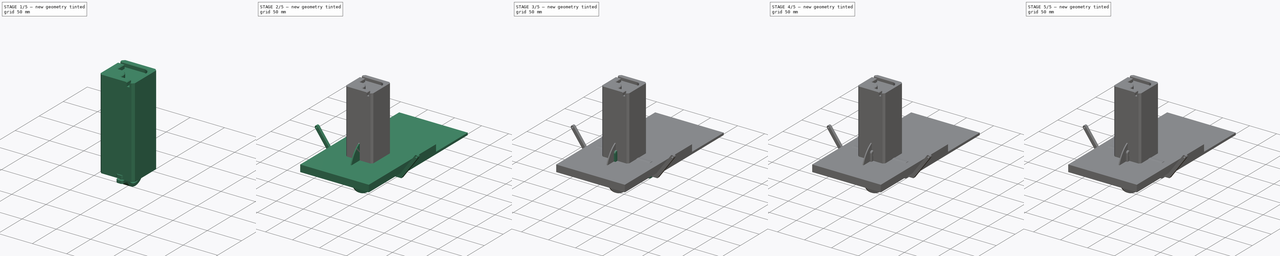
[diagram: build sequence overview — one tinted view per stage of 5, left to right]
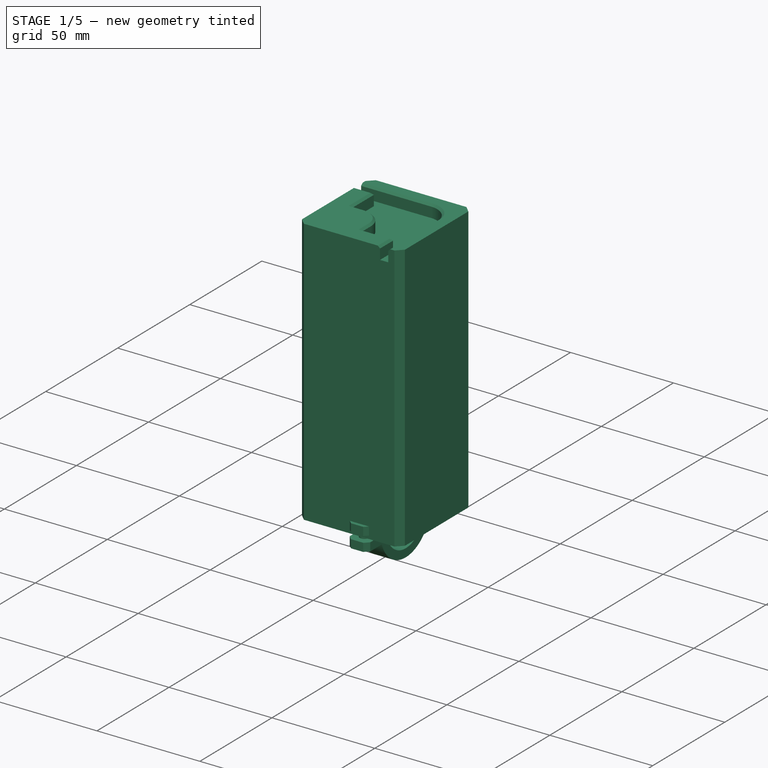
[diagram: stage 1 of 5 — iso view after this stage's code; geometry added in this stage tinted green]
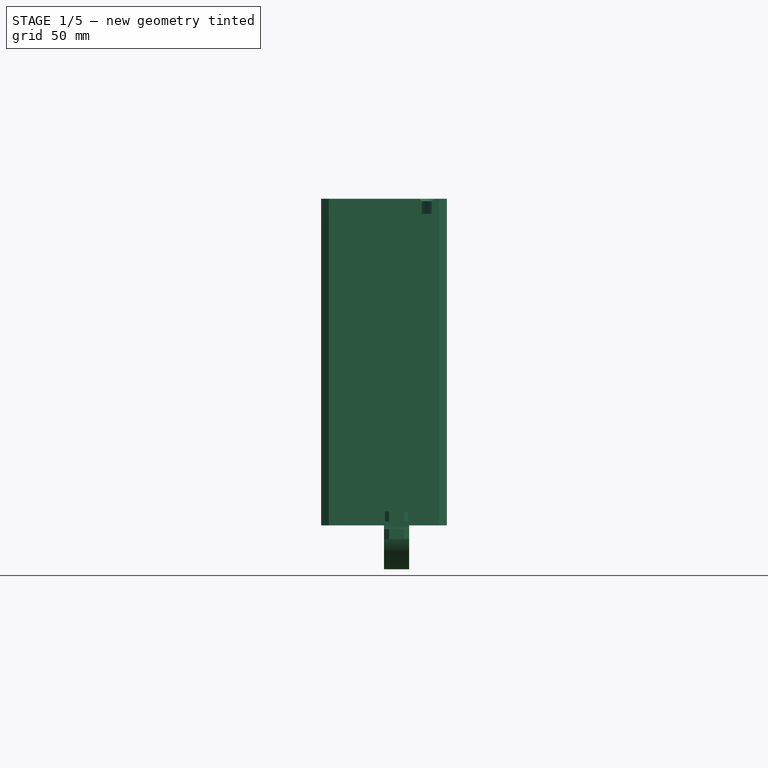
[diagram: stage 1 of 5 — front view after this stage's code; geometry added in this stage tinted green]
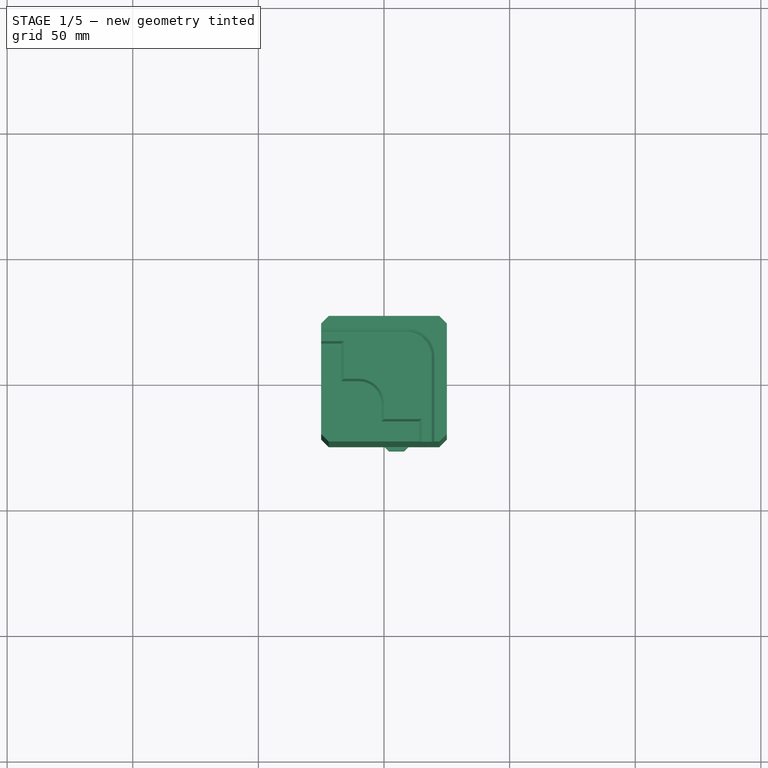
[diagram: stage 1 of 5 — top view after this stage's code; geometry added in this stage tinted green]
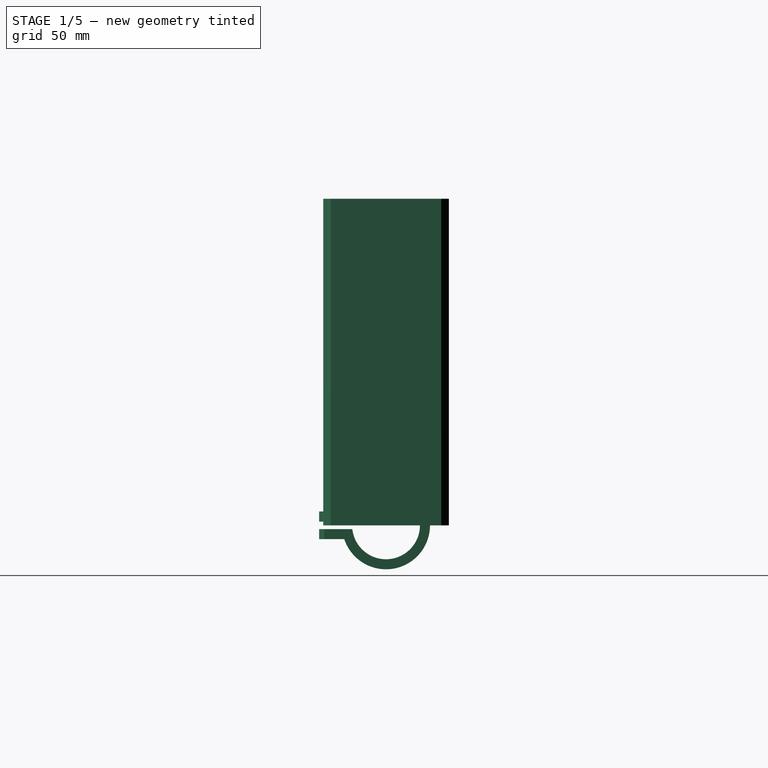
[diagram: stage 1 of 5 — right view after this stage's code; geometry added in this stage tinted green]
FCSTD DOCUMENT  (FreeCAD 0.19R24291 (Git))
Label: DryBox
License: All rights reserved
LicenseURL: http://en.wikipedia.org/wiki/All_rights_reserved
objects: Sketcher::SketchObject×31, PartDesign::Pad×17, PartDesign::Body×13, App::Part×11, PartDesign::Pocket×8, PartDesign::Chamfer×7, PartDesign::Plane×4, PartDesign::Groove×3, PartDesign::PolarPattern×2, PartDesign::AdditiveHelix×1, PartDesign::SubtractiveHelix×1, PartDesign::Revolution×1
note: 126 computed .brp shape members not serialized (recipe doc carries the construction recipe); baked Part::Feature solids carry a one-line shape summary decoded from their .brp

FEATURE [PartDesign::Body] Body005
  Group = -> [Sketch015,Pad008,Sketch016,Pad009,Sketch017,Pocket002,Sketch018,DatumPlane,Pocket003,Chamfer003]
  Origin = -> Origin011
  Tip = -> Chamfer003
FEATURE [App::Part] Part005  label="PVC_Hanger"
  Group = -> [Body005]
  Origin = -> Origin010
  Placement = pos=(-133,0,0) rot=(0,0,1;0rad)
FEATURE [Sketcher::SketchObject] Sketch019
  FullyConstrained = true
  MapMode = 5
  Placement = pos=(0,0,0) rot=(0.57735,0.57735,0.57735;2.0944rad)
  Support = -> [YZ_Plane013]
  sketch-geometry (9):
    g0: ArcOfCircle CenterX=0 CenterY=0 CenterZ=0 NormalX=0 NormalY=0 NormalZ=1 AngleXU=0 Radius=13.5 StartAngle=3.25293 EndAngle=9.31344
    g1: ArcOfCircle CenterX=0 CenterY=0 CenterZ=0 NormalX=0 NormalY=0 NormalZ=1 AngleXU=0 Radius=17.5 StartAngle=3.4613 EndAngle=9.10507
    g2: LineSegment StartX=-13.4164 StartY=1.5 StartZ=0 EndX=-26.6132 EndY=1.5 EndZ=0
    g3: LineSegment StartX=-13.4164 StartY=-1.5 StartZ=0 EndX=-26.6132 EndY=-1.5 EndZ=0
    g4: LineSegment StartX=-26.6132 StartY=1.5 StartZ=0 EndX=-26.6132 EndY=-1.5 EndZ=0
    g5: LineSegment StartX=-16.6132 StartY=5.5 StartZ=0 EndX=-26.6132 EndY=5.5 EndZ=0
    g6: LineSegment StartX=-16.6132 StartY=-5.5 StartZ=0 EndX=-26.6132 EndY=-5.5 EndZ=0
    g7: LineSegment StartX=-26.6132 StartY=-1.5 StartZ=0 EndX=-26.6132 EndY=-5.5 EndZ=0
    g8: LineSegment StartX=-26.6132 StartY=5.5 StartZ=0 EndX=-26.6132 EndY=1.5 EndZ=0
  constraints (25):
    c: Coincident(g0,g-1)
    c: Radius(g0) = 13.5
    c: Coincident(g1,g0)
    c: Radius(g1) = 17.5
    c: Horizontal(g2)
    c: Horizontal(g3)
    c: Coincident(g4,g2)
    c: Coincident(g4,g3)
    c: DistanceY(g4,g4) = 3
    c: Symmetric(g3,g2,g-1)
    c: Horizontal(g5)
    c: Horizontal(g6)
    c: Coincident(g7,g3)
    c: Coincident(g7,g6)
    c: Vertical(g7)
    c: Coincident(g8,g5)
    c: Coincident(g8,g2)
    c: Vertical(g8)
    c: Equal(g8,g7)
    c: DistanceY(g8,g8) = 4
    c: Coincident(g1,g5)
    c: Coincident(g1,g6)
    c: Coincident(g0,g3)
    c: Coincident(g0,g2)
    c: DistanceX(g5,g5) = 10
FEATURE [PartDesign::Pad] Pad010
  Direction = (1,1,1)
  Length = 10
  Length2 = 100
  Placement = pos=(0,0,0) rot=(0.57735,0.57735,0.57735;2.0944rad)
  Profile = -> Sketch019
  Type = 0
FEATURE [PartDesign::Plane] DatumPlane001
  AttachmentOffset = pos=(0,0,-5.5) rot=(0,0,1;0rad)
  Length = 60.2018
  MapMode = 5
  Placement = pos=(0,0,-5.5) rot=(0,0,1;0rad)
  ResizeMode = 0
  Support = -> [XY_Plane013]
  Width = 62.2404
FEATURE [Sketcher::SketchObject] Sketch020
  ExternalGeometry = -> [Pad010]
  FullyConstrained = true
  MapMode = 5
  Placement = pos=(0,0,-5.5) rot=(0,0,1;0rad)
  Support = -> [DatumPlane001]
  sketch-geometry (11):
    g0: LineSegment StartX=7.04959 StartY=-25.1632 StartZ=0 EndX=9.09919 EndY=-21.6132 EndZ=0
    g1: LineSegment StartX=9.09919 StartY=-21.6132 StartZ=0 EndX=7.04959 EndY=-18.0632 EndZ=0
    g2: LineSegment StartX=7.04959 StartY=-18.0632 StartZ=0 EndX=2.95041 EndY=-18.0632 EndZ=0
    g3: LineSegment StartX=2.95041 StartY=-18.0632 StartZ=0 EndX=0.900813 EndY=-21.6132 EndZ=0
    g4: LineSegment StartX=0.900813 StartY=-21.6132 StartZ=0 EndX=2.95041 EndY=-25.1632 EndZ=0
    g5: LineSegment StartX=2.95041 StartY=-25.1632 StartZ=0 EndX=7.04959 EndY=-25.1632 EndZ=0
    g6: Circle CenterX=5 CenterY=-21.6132 CenterZ=0 NormalX=0 NormalY=0 NormalZ=1 AngleXU=0 Radius=4.09919
    g7: LineSegment StartX=2.95041 StartY=-18.0632 StartZ=0 EndX=2.95041 EndY=-16.6132 EndZ=0
    g8: LineSegment StartX=7.04959 StartY=-25.1632 StartZ=0 EndX=7.04959 EndY=-26.6132 EndZ=0
    g9: LineSegment StartX=9.09919 StartY=-21.6132 StartZ=0 EndX=10 EndY=-21.6132 EndZ=0
    g10: LineSegment StartX=0.900813 StartY=-21.6132 StartZ=0 EndX=-1.8e-15 EndY=-21.6132 EndZ=0
  constraints (29):
    c: Coincident(g0,g1)
    c: Coincident(g1,g2)
    c: Coincident(g2,g3)
    c: Coincident(g3,g4)
    c: Coincident(g4,g5)
    c: Coincident(g5,g0)
    c: Equal(g0, g1-g5) x5
    c: PointOnObject(g0,g6)
    c: PointOnObject(g1,g6)
    c: PointOnObject(g2,g6)
    c: PointOnObject(g3,g6)
    c: PointOnObject(g4,g6)
    c: PointOnObject(g5,g6)
    c: Horizontal(g2)
    c: Distance(g4,g0) = 7.1
    c: Coincident(g7,g2)
    c: PointOnObject(g7,g-6)
    c: Vertical(g7)
    c: Coincident(g8,g0)
    c: PointOnObject(g8,g-4)
    c: Vertical(g8)
    c: Coincident(g9,g0)
    c: PointOnObject(g9,g-3)
    c: Horizontal(g9)
    c: Coincident(g10,g3)
    c: PointOnObject(g10,g-5)
    c: Horizontal(g10)
    c: Equal(g8,g7)
    c: Equal(g9,g10)
FEATURE [PartDesign::Pocket] Pocket004
  BaseFeature = -> Pad010
  Length = 2
  Length2 = 100
  Placement = pos=(0,0,0) rot=(0.57735,0.57735,0.57735;2.0944rad)
  Profile = -> Sketch020
  Reversed = true
  Type = 0
FEATURE [PartDesign::Plane] DatumPlane002
  AttachmentOffset = pos=(0,0,5.5) rot=(0,0,1;0rad)
  Length = 60.2018
  MapMode = 5
  Placement = pos=(0,0,5.5) rot=(0,0,1;0rad)
  ResizeMode = 0
  Support = -> [XY_Plane013]
  Width = 62.2404
FEATURE [Sketcher::SketchObject] Sketch021
  ExternalGeometry = -> [Pocket004]
  FullyConstrained = true
  MapMode = 5
  Placement = pos=(0,0,5.5) rot=(0,0,1;0rad)
  Support = -> [DatumPlane002]
  sketch-geometry (5):
    g0: Circle CenterX=5 CenterY=-21.6132 CenterZ=0 NormalX=0 NormalY=0 NormalZ=1 AngleXU=0 Radius=2.2
    g1: LineSegment StartX=5 StartY=-21.6132 StartZ=0 EndX=5 EndY=-26.6132 EndZ=0
    g2: LineSegment StartX=5 StartY=-21.6132 StartZ=0 EndX=-9.8e-15 EndY=-21.6132 EndZ=0
    g3: LineSegment StartX=5 StartY=-21.6132 StartZ=0 EndX=5 EndY=-16.6132 EndZ=0
    g4: LineSegment StartX=5 StartY=-21.6132 StartZ=0 EndX=10 EndY=-21.6132 EndZ=0
  constraints (15):
    c: Radius(g0) = 2.2
    c: Coincident(g1,g0)
    c: Vertical(g1)
    c: Coincident(g2,g0)
    c: PointOnObject(g2,g-4)
    c: Horizontal(g2)
    c: Equal(g2,g1)
    c: Coincident(g3,g0)
    c: Vertical(g3)
    c: Coincident(g4,g0)
    c: PointOnObject(g4,g-3)
    c: Horizontal(g4)
    c: Equal(g4,g1)
    c: Horizontal(g3,g-3)
    c: Horizontal(g1,g-3)
FEATURE [PartDesign::Pocket] Pocket005
  BaseFeature = -> Pocket004
  Length = 5
  Length2 = 100
  Placement = pos=(0,0,0) rot=(0.57735,0.57735,0.57735;2.0944rad)
  Profile = -> Sketch021
  Type = 1
FEATURE [PartDesign::Chamfer] Chamfer004
  Angle = 45
  Base = -> Pocket005 [Edge16,Edge20,Edge10,Edge14]
  BaseFeature = -> Pocket005
  ChamferType = 0
  FlipDirection = false
  Placement = pos=(0,0,0) rot=(0.57735,0.57735,0.57735;2.0944rad)
  Size = 2
  Size2 = 1
  SupportTransform = false
FEATURE [PartDesign::Body] Body006
  Group = -> [Sketch019,Pad010,DatumPlane001,Sketch020,Pocket004,DatumPlane002,Sketch021,Pocket005,Chamfer004,Sketch028,Pad016]
  Origin = -> Origin013
  Tip = -> Pad016
FEATURE [App::Part] Part006  label="PVC_Clamp"
  Group = -> [Body006]
  Origin = -> Origin012
  Placement = pos=(-80,0,0) rot=(0,0,1;0rad)
FEATURE [Sketcher::SketchObject] Sketch029
  FullyConstrained = true
  MapMode = 5
  Support = -> [XY_Plane023]
  sketch-geometry (4):
    g0: LineSegment StartX=-25 StartY=25 StartZ=0 EndX=25 EndY=25 EndZ=0
    g1: LineSegment StartX=25 StartY=25 StartZ=0 EndX=25 EndY=-25 EndZ=0
    g2: LineSegment StartX=25 StartY=-25 StartZ=0 EndX=-25 EndY=-25 EndZ=0
    g3: LineSegment StartX=-25 StartY=-25 StartZ=0 EndX=-25 EndY=25 EndZ=0
  constraints (11):
    c: Coincident(g0,g1)
    c: Coincident(g1,g2)
    c: Coincident(g2,g3)
    c: Coincident(g3,g0)
    c: Horizontal(g0)
    c: Horizontal(g2)
    c: Vertical(g1)
    c: Vertical(g3)
    c: Equal(g0,g1)
    c: Symmetric(g0,g1,g-1)
    c: DistanceX(g0,g0) = 50
FEATURE [PartDesign::Pad] Pad017
  Direction = (1,1,1)
  Length = 130
  Length2 = 100
  Profile = -> Sketch029
  Type = 0
FEATURE [PartDesign::Plane] DatumPlane003
  AttachmentOffset = pos=(0,0,130) rot=(0,0,1;0rad)
  Length = 60
  MapMode = 5
  Placement = pos=(0,0,130) rot=(0,0,1;0rad)
  ResizeMode = 0
  Support = -> [XY_Plane023]
  Width = 60
FEATURE [Sketcher::SketchObject] Sketch030
  FullyConstrained = true
  MapMode = 5
  Placement = pos=(0,0,130) rot=(0,0,1;0rad)
  Support = -> [DatumPlane003]
  sketch-geometry (14):
    g0: LineSegment StartX=-31 StartY=19 StartZ=0 EndX=9 EndY=19 EndZ=0
    g1: LineSegment StartX=19 StartY=9 StartZ=0 EndX=19 EndY=-31 EndZ=0
    g2: LineSegment StartX=15 StartY=-16 StartZ=0 EndX=0 EndY=-16 EndZ=0
    g3: LineSegment StartX=0 StartY=-16 StartZ=0 EndX=0 EndY=-10 EndZ=0
    g4: LineSegment StartX=-10 StartY=0 StartZ=0 EndX=-16 EndY=0 EndZ=0
    g5: LineSegment StartX=-16 StartY=0 StartZ=0 EndX=-16 EndY=15 EndZ=0
    g6: ArcOfCircle CenterX=-10 CenterY=-10 CenterZ=0 NormalX=0 NormalY=0 NormalZ=1 AngleXU=0 Radius=10 StartAngle=0 EndAngle=1.5708
    g7: GeomPoint X=0 Y=0 Z=0
    g8: ArcOfCircle CenterX=9 CenterY=9 CenterZ=0 NormalX=0 NormalY=0 NormalZ=1 AngleXU=0 Radius=10 StartAngle=-2.38e-13 EndAngle=1.5708
    g9: GeomPoint X=19 Y=19 Z=0
    g10: LineSegment StartX=-16 StartY=15 StartZ=0 EndX=-31 EndY=15 EndZ=0
    g11: LineSegment StartX=-31 StartY=15 StartZ=0 EndX=-31 EndY=19 EndZ=0
    g12: LineSegment StartX=15 StartY=-16 StartZ=0 EndX=15 EndY=-31 EndZ=0
    g13: LineSegment StartX=15 StartY=-31 StartZ=0 EndX=19 EndY=-31 EndZ=0
  constraints (37):
    c: Vertical(g1)
    c: Coincident(g2,g3)
    c: Horizontal(g4)
    c: Coincident(g4,g5)
    c: Vertical(g5)
    c: Horizontal(g0)
    c: Vertical(g3)
    c: Horizontal(g2)
    c: DistanceY(g5,g0) = 19
    c: Coincident(g-1,g7)
    c: PointOnObject(g7,g3)
    c: PointOnObject(g7,g4)
    c: Tangent(g3,g6) = -1.5708
    c: Tangent(g4,g6) = -1.5708
    c: PointOnObject(g9,g1)
    c: PointOnObject(g9,g0)
    c: Tangent(g1,g8) = 1.5708
    c: Tangent(g0,g8) = 1.5708
    c: Radius(g8) = 10
    c: DistanceY(g2,g-1) = 16
    c: Equal(g3,g4)
    c: Equal(g6,g8)
    c: Horizontal(g10)
    c: Coincident(g10,g11)
    c: Vertical(g11)
    c: Coincident(g5,g10)
    c: DistanceY(g11,g11) = 4
    c: Coincident(g0,g11)
    c: DistanceX(g10,g10) = 15
    c: Vertical(g12)
    c: Coincident(g12,g13)
    c: Horizontal(g13)
    c: Equal(g13,g11)
    c: Equal(g10,g12)
    c: Coincident(g2,g12)
    c: Coincident(g1,g13)
    c: Equal(g0,g1)
FEATURE [PartDesign::Pocket] Pocket007
  BaseFeature = -> Pad017
  Length = 6
  Length2 = 100
  Profile = -> Sketch030
  Type = 0
FEATURE [PartDesign::Chamfer] Chamfer006
  Angle = 45
  Base = -> Pocket007 [Edge18,Edge40,Edge39,Edge36,Edge35,Edge32]
  BaseFeature = -> Pocket007
  ChamferType = 0
  FlipDirection = false
  Size = 1
  Size2 = 1
  SupportTransform = false
FEATURE [PartDesign::Chamfer] Chamfer007
  Angle = 45
  Base = -> Chamfer006 [Edge38,Edge7,Edge19,Edge3]
  BaseFeature = -> Chamfer006
  ChamferType = 0
  FlipDirection = false
  Size = 3
  Size2 = 1
  SupportTransform = false
FEATURE [PartDesign::Body] Body012
  Group = -> [Sketch029,Pad017,DatumPlane003,Sketch030,Pocket007,Chamfer006,Chamfer007]
  Origin = -> Origin023
  Tip = -> Chamfer007
FEATURE [App::Part] Part010  label="Feet"
  Group = -> [Body012]
  Origin = -> Origin022
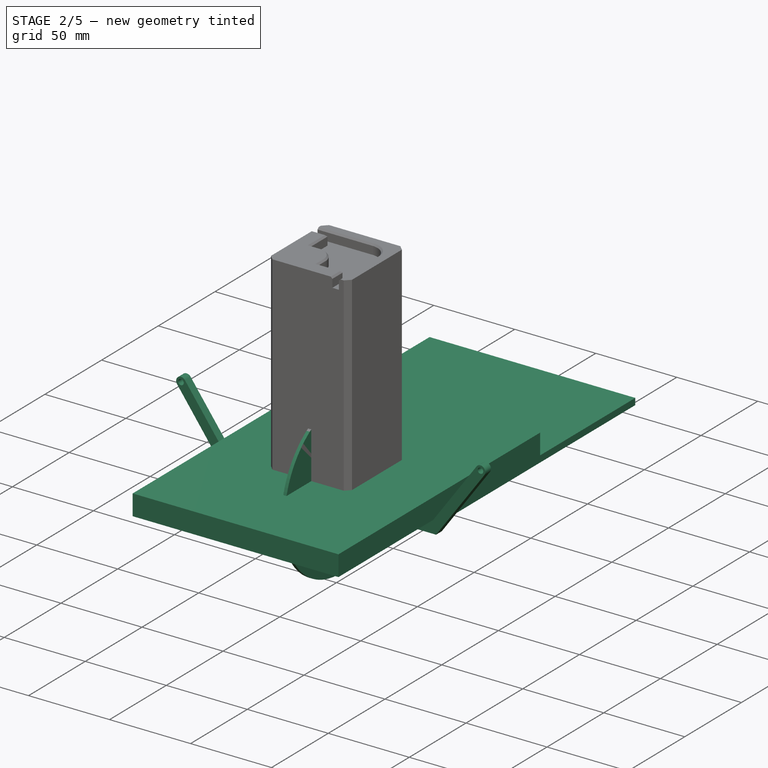
[diagram: stage 2 of 5 — iso view after this stage's code; geometry added in this stage tinted green]
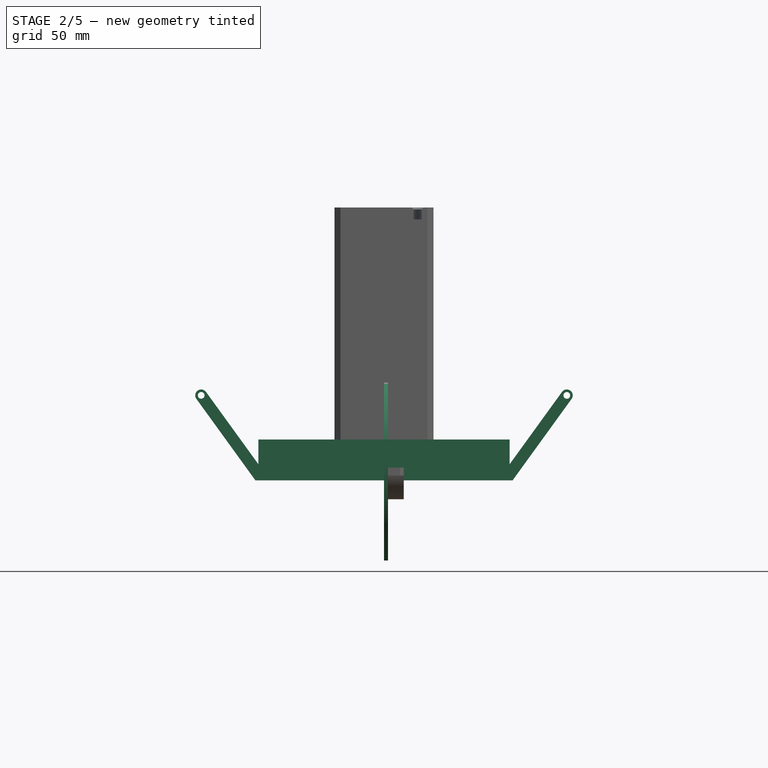
[diagram: stage 2 of 5 — front view after this stage's code; geometry added in this stage tinted green]
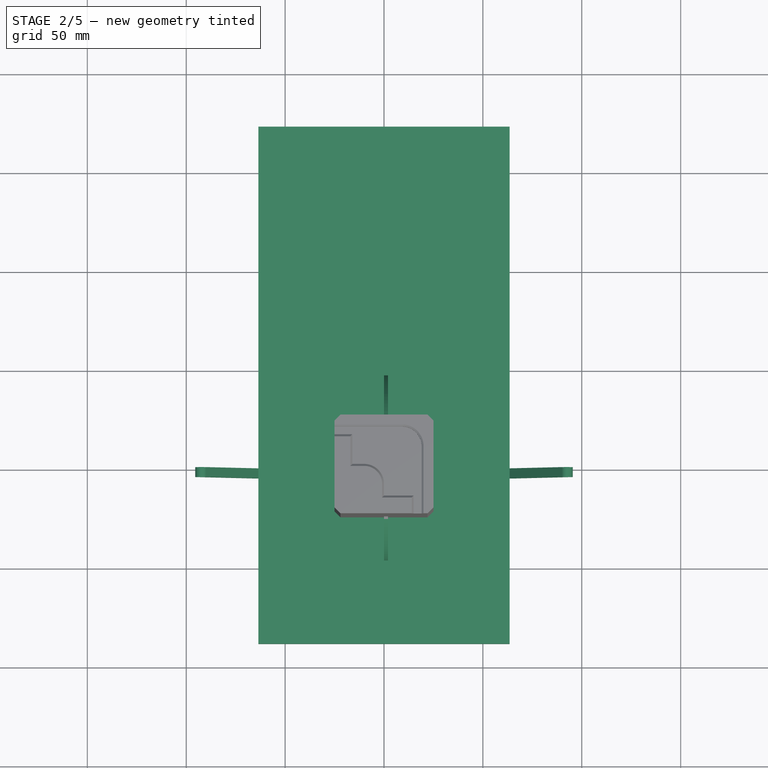
[diagram: stage 2 of 5 — top view after this stage's code; geometry added in this stage tinted green]
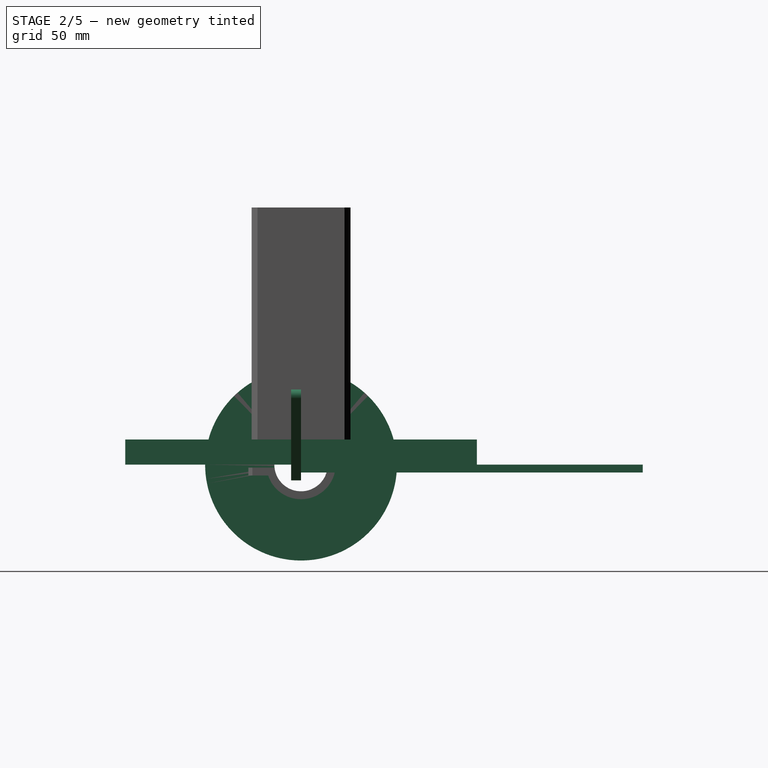
[diagram: stage 2 of 5 — right view after this stage's code; geometry added in this stage tinted green]
FEATURE [Sketcher::SketchObject] Sketch
  FullyConstrained = true
  MapMode = 5
  Support = -> [XY_Plane001]
  sketch-geometry (2):
    g0: Circle CenterX=0 CenterY=0 CenterZ=0 NormalX=0 NormalY=0 NormalZ=1 AngleXU=0 Radius=14
    g1: Circle CenterX=0 CenterY=0 CenterZ=0 NormalX=0 NormalY=0 NormalZ=1 AngleXU=0 Radius=1.1
  constraints (4):
    c: Coincident(g0,g-1)
    c: Radius(g0) = 14
    c: Coincident(g1,g0)
    c: Radius(g1) = 1.1
FEATURE [PartDesign::Pad] Pad
  Direction = (1,1,1)
  Length = 3.5
  Length2 = 100
  Profile = -> Sketch
  Type = 0
FEATURE [Sketcher::SketchObject] Sketch001
  FullyConstrained = true
  MapMode = 5
  Support = -> [XY_Plane001]
  sketch-geometry (2):
    g0: Circle CenterX=0 CenterY=0 CenterZ=0 NormalX=0 NormalY=0 NormalZ=1 AngleXU=0 Radius=5.9
    g1: Circle CenterX=0 CenterY=0 CenterZ=0 NormalX=0 NormalY=0 NormalZ=1 AngleXU=0 Radius=2
  constraints (4):
    c: Coincident(g0,g-1)
    c: Coincident(g1,g0)
    c: Radius(g1) = 2
    c: Radius(g0) = 5.9
FEATURE [PartDesign::Pad] Pad001
  BaseFeature = -> Pad
  Direction = (1,1,1)
  Length = 20
  Length2 = 100
  Profile = -> Sketch001
  Type = 0
FEATURE [PartDesign::Body] Body
  Group = -> [Sketch,Pad,Sketch001,Pad001,Sketch002,Sketch003,Sketch004,Sketch005,AdditiveHelix,Groove,Pad004,Groove001,Chamfer,Chamfer005]
  Origin = -> Origin001
  Tip = -> Chamfer005
FEATURE [App::Part] Part  label="Filiment_Bolt"
  Group = -> [Body]
  Origin = -> Origin
FEATURE [Sketcher::SketchObject] Sketch023
  FullyConstrained = true
  MapMode = 5
  Support = -> [XY_Plane015]
  sketch-geometry (4):
    g0: LineSegment StartX=-63.5 StartY=88.9 StartZ=0 EndX=63.5 EndY=88.9 EndZ=0
    g1: LineSegment StartX=63.5 StartY=88.9 StartZ=0 EndX=63.5 EndY=-88.9 EndZ=0
    g2: LineSegment StartX=63.5 StartY=-88.9 StartZ=0 EndX=-63.5 EndY=-88.9 EndZ=0
    g3: LineSegment StartX=-63.5 StartY=-88.9 StartZ=0 EndX=-63.5 EndY=88.9 EndZ=0
  constraints (11):
    c: Coincident(g0,g1)
    c: Coincident(g1,g2)
    c: Coincident(g2,g3)
    c: Coincident(g3,g0)
    c: Horizontal(g0)
    c: Horizontal(g2)
    c: Vertical(g1)
    c: Vertical(g3)
    c: DistanceX(g0,g0) = 127
    c: DistanceY(g1,g1) = 177.8
    c: Symmetric(g0,g1,g-1)
FEATURE [PartDesign::Pad] Pad012
  Direction = (1,1,1)
  Length = 12.7
  Length2 = 100
  Profile = -> Sketch023
  Type = 0
FEATURE [PartDesign::Body] Body007  label="Bag"
  Group = -> [Sketch023,Pad012]
  Origin = -> Origin015
  Tip = -> Pad012
FEATURE [Sketcher::SketchObject] Sketch024
  FullyConstrained = true
  MapMode = 5
  Placement = pos=(0,0,0) rot=(1,0,0;1.5708rad)
  Support = -> [XZ_Plane018]
  sketch-geometry (18):
    g0: LineSegment StartX=94.8599 StartY=33.2406 StartZ=0 EndX=65 EndY=-8 EndZ=0
    g1: LineSegment StartX=65 StartY=-8 StartZ=0 EndX=-65 EndY=-8 EndZ=0
    g2: LineSegment StartX=-65 StartY=-8 StartZ=0 EndX=-94.8599 EndY=33.2406 EndZ=0
    g3: LineSegment StartX=-90 StartY=36.7594 StartZ=0 EndX=-63.3847 EndY=0 EndZ=0
    g4: LineSegment StartX=-63.3847 StartY=0 StartZ=0 EndX=-35 EndY=0 EndZ=0
    g5: LineSegment StartX=63.3847 StartY=0 StartZ=0 EndX=90 EndY=36.7594 EndZ=0
    g6: LineSegment StartX=-90 StartY=36.7594 StartZ=0 EndX=90 EndY=36.7594 EndZ=0
    g7: LineSegment StartX=90 StartY=36.7594 StartZ=0 EndX=94.8599 EndY=33.2406 EndZ=0
    g8: LineSegment StartX=-90 StartY=36.7594 StartZ=0 EndX=-94.8599 EndY=33.2406 EndZ=0
    g9: ArcOfCircle CenterX=-92.4299 CenterY=35 CenterZ=0 NormalX=0 NormalY=0 NormalZ=1 AngleXU=0 Radius=3 StartAngle=0.626679 EndAngle=3.76827
    g10: ArcOfCircle CenterX=92.4299 CenterY=35 CenterZ=0 NormalX=0 NormalY=0 NormalZ=1 AngleXU=0 Radius=3 StartAngle=5.65651 EndAngle=8.7981
    g11: LineSegment StartX=35 StartY=0 StartZ=0 EndX=42.5 EndY=-4 EndZ=0
    g12: LineSegment StartX=42.5 StartY=-4 StartZ=0 EndX=-42.5 EndY=-4 EndZ=0
    g13: LineSegment StartX=-42.5 StartY=-4 StartZ=0 EndX=-35 EndY=0 EndZ=0
    g14: LineSegment StartX=42.5 StartY=-4 StartZ=0 EndX=42.5 EndY=0 EndZ=0
    g15: LineSegment StartX=42.5 StartY=-4 StartZ=0 EndX=42.5 EndY=-8 EndZ=0
    g16: LineSegment StartX=35 StartY=0 StartZ=0 EndX=63.3847 EndY=0 EndZ=0
    g17: LineSegment StartX=-35 StartY=0 StartZ=0 EndX=35 EndY=0 EndZ=0
  constraints (46):
    c: Coincident(g0,g1)
    c: Coincident(g1,g2)
    c: Coincident(g3,g4)
    c: Horizontal(g4)
    c: Coincident(g16,g5)
    c: Parallel(g0,g5)
    c: Parallel(g3,g2)
    c: Coincident(g6,g5)
    c: Symmetric(g5,g3,g-2)
    c: DistanceY(g0,g16) = 8
    c: DistanceX(g1,g1) = 130
    c: Coincident(g7,g5)
    c: PointOnObject(g7,g0)
    c: Perpendicular(g0,g7)
    c: Distance(g7) = 6
    c: PointOnObject(g8,g2)
    c: Perpendicular(g2,g8)
    c: Equal(g8,g7)
    c: Tangent(g9,g3) = 1.5708
    c: Tangent(g9,g2) = 1.5708
    c: Coincident(g6,g3)
    c: Coincident(g8,g3)
    c: Tangent(g10,g0) = 1.5708
    c: Tangent(g10,g5) = 1.5708
    c: Symmetric(g1,g0,g-2)
    c: Coincident(g11,g12)
    c: Coincident(g12,g13)
    c: Symmetric(g11,g13,g-2)
    c: Symmetric(g12,g11,g-2)
    c: Coincident(g14,g11)
    c: PointOnObject(g14,g4)
    c: Vertical(g14)
    c: Coincident(g15,g11)
    c: PointOnObject(g15,g1)
    c: Vertical(g15)
    c: Equal(g14,g15)
    c: DistanceX(g12,g12) = 85
    c: PointOnObject(g4,g13)
    c: Coincident(g16,g11)
    c: Tangent(g4,g16)
    c: Coincident(g17,g4)
    c: Coincident(g17,g11)
    c: DistanceX(g17,g17) = 70
    c: PointOnObject(g5,g-1)
    c: DistanceX(g6,g6) = 180
    c: DistanceY(g5,g10) = 35
FEATURE [PartDesign::Pad] Pad013
  Direction = (1,1,1)
  Length = 5
  Length2 = 100
  Placement = pos=(0,0,0) rot=(1,0,0;1.5708rad)
  Profile = -> Sketch024
  Type = 0
FEATURE [Sketcher::SketchObject] Sketch025
  ExternalGeometry = -> [Pad013]
  FullyConstrained = true
  MapMode = 5
  Placement = pos=(0,0,0) rot=(1,0,0;1.5708rad)
  Support = -> [XZ_Plane018]
  sketch-geometry (2):
    g0: Circle CenterX=92.4299 CenterY=35 CenterZ=0 NormalX=0 NormalY=0 NormalZ=1 AngleXU=0 Radius=1.7
    g1: Circle CenterX=-92.4299 CenterY=35 CenterZ=0 NormalX=0 NormalY=0 NormalZ=1 AngleXU=0 Radius=1.7
  constraints (4):
    c: Radius(g0) = 1.7
    c: Coincident(g0,g-3)
    c: Equal(g1,g0)
    c: Symmetric(g1,g0,g-2)
FEATURE [PartDesign::Pocket] Pocket006
  BaseFeature = -> Pad013
  Length = 5
  Length2 = 100
  Placement = pos=(0,0,0) rot=(1,0,0;1.5708rad)
  Profile = -> Sketch025
  Reversed = true
  Type = 1
FEATURE [PartDesign::Body] Body009  label="Hanger"
  Group = -> [Sketch024,Pad013,Sketch025,Pocket006]
  Origin = -> Origin018
  Tip = -> Pocket006
FEATURE [Sketcher::SketchObject] Sketch026
  FullyConstrained = true
  MapMode = 5
  Support = -> [XY_Plane019]
  sketch-geometry (4):
    g0: LineSegment StartX=-63.5 StartY=-5 StartZ=0 EndX=63.5 EndY=-5 EndZ=0
    g1: LineSegment StartX=63.5 StartY=-5 StartZ=0 EndX=63.5 EndY=172.8 EndZ=0
    g2: LineSegment StartX=63.5 StartY=172.8 StartZ=0 EndX=-63.5 EndY=172.8 EndZ=0
    g3: LineSegment StartX=-63.5 StartY=172.8 StartZ=0 EndX=-63.5 EndY=-5 EndZ=0
  constraints (11):
    c: Coincident(g0,g1)
    c: Coincident(g1,g2)
    c: Coincident(g2,g3)
    c: Coincident(g3,g0)
    c: Horizontal(g2)
    c: Vertical(g1)
    c: Vertical(g3)
    c: DistanceY(g0,g-1) = 5
    c: Symmetric(g0,g0,g-2)
    c: DistanceY(g3,g3) = 177.8
    c: DistanceX(g2,g2) = 127
FEATURE [PartDesign::Pad] Pad014
  Direction = (1,1,1)
  Length = 4
  Length2 = 100
  Profile = -> Sketch026
  Reversed = true
  Type = 0
FEATURE [PartDesign::Body] Body010
  Group = -> [Sketch026,Pad014]
  Origin = -> Origin019
  Tip = -> Pad014
FEATURE [App::Part] Part007  label="Desecant_Holder"
  Group = -> [Body007,Body009,Body010]
  Origin = -> Origin014
  Placement = pos=(0,166,0) rot=(0,0,1;0rad)
FEATURE [Sketcher::SketchObject] Sketch027
  FullyConstrained = true
  MapMode = 5
  Placement = pos=(0,0,0) rot=(0.57735,0.57735,0.57735;2.0944rad)
  Support = -> [YZ_Plane021]
  sketch-geometry (3):
    g0: Circle CenterX=0 CenterY=0 CenterZ=0 NormalX=0 NormalY=0 NormalZ=1 AngleXU=0 Radius=48.5
    g1: Circle CenterX=0 CenterY=0 CenterZ=0 NormalX=0 NormalY=0 NormalZ=1 AngleXU=0 Radius=13.5
    g2: LineSegment StartX=48.5 StartY=0 StartZ=0 EndX=13.5 EndY=0 EndZ=0
  constraints (8):
    c: Coincident(g0,g-1)
    c: Coincident(g1,g0)
    c: Radius(g1) = 13.5
    c: PointOnObject(g2,g0)
    c: PointOnObject(g2,g1)
    c: Horizontal(g2)
    c: PointOnObject(g2,g-1)
    c: DistanceX(g2,g2) = 35
FEATURE [PartDesign::Pad] Pad015
  Direction = (1,1,1)
  Length = 2
  Length2 = 100
  Placement = pos=(0,0,0) rot=(0.57735,0.57735,0.57735;2.0944rad)
  Profile = -> Sketch027
  Type = 0
FEATURE [PartDesign::Body] Body011
  Group = -> [Sketch027,Pad015]
  Origin = -> Origin021
  Tip = -> Pad015
FEATURE [App::Part] Part009  label="PVC_Reel_Spacer"
  Group = -> [Body011]
  Origin = -> Origin020
  Placement = pos=(-65,0,0) rot=(0,0,1;0rad)
FEATURE [Sketcher::SketchObject] Sketch028
  FullyConstrained = true
  MapMode = 5
  Placement = pos=(0,0,0) rot=(0.57735,0.57735,0.57735;2.0944rad)
  Support = -> [YZ_Plane013]
  sketch-geometry (5):
    g0: ArcOfCircle CenterX=8 CenterY=-9e-16 CenterZ=0 NormalX=0 NormalY=0 NormalZ=1 AngleXU=0 Radius=17.5 StartAngle=4.71239 EndAngle=7.85398
    g1: LineSegment StartX=5.4e-15 StartY=17.5 StartZ=0 EndX=8 EndY=17.5 EndZ=0
    g2: LineSegment StartX=-3.2e-15 StartY=-17.5 StartZ=0 EndX=8 EndY=-17.5 EndZ=0
    g3: ArcOfCircle CenterX=0 CenterY=0 CenterZ=0 NormalX=0 NormalY=0 NormalZ=1 AngleXU=0 Radius=17.5 StartAngle=4.71239 EndAngle=7.85398
    g4: GeomPoint X=25.5 Y=0 Z=0
  constraints (13):
    c: PointOnObject(g1,g-2)
    c: Horizontal(g1)
    c: PointOnObject(g2,g-2)
    c: Horizontal(g2)
    c: Tangent(g2,g0) = -1.5708
    c: Tangent(g0,g1) = 1.5708
    c: Coincident(g3,g1)
    c: Coincident(g3,g2)
    c: Coincident(g3,g-1)
    c: Radius(g3) = 17.5
    c: DistanceX(g1,g1) = 8
    c: PointOnObject(g4,g0)
    c: PointOnObject(g4,g-1)
FEATURE [PartDesign::Pad] Pad016
  BaseFeature = -> Chamfer004
  Direction = (1,1,1)
  Length = 2
  Length2 = 100
  Placement = pos=(0,0,0) rot=(0.57735,0.57735,0.57735;2.0944rad)
  Profile = -> Sketch028
  Type = 0
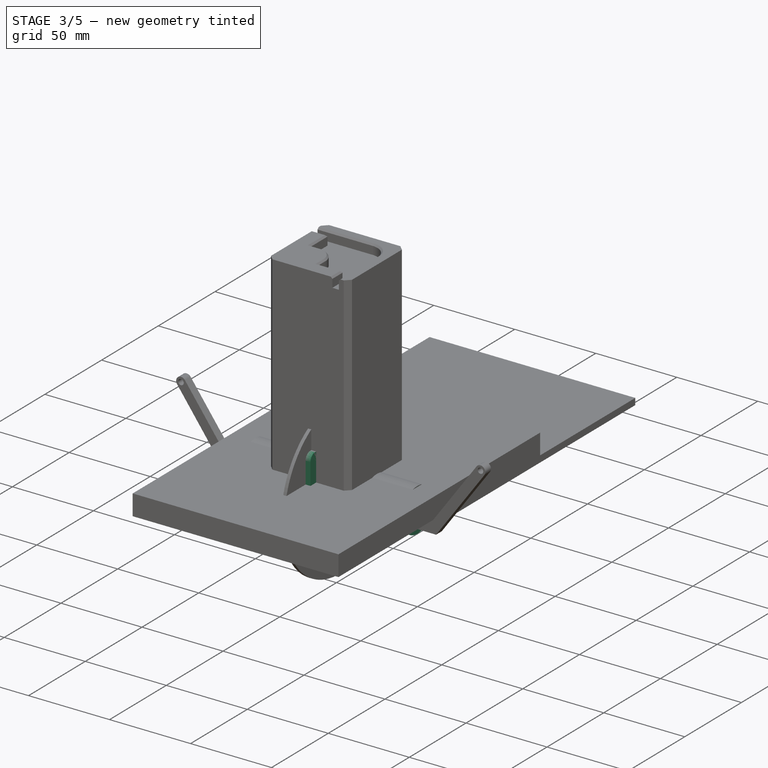
[diagram: stage 3 of 5 — iso view after this stage's code; geometry added in this stage tinted green]
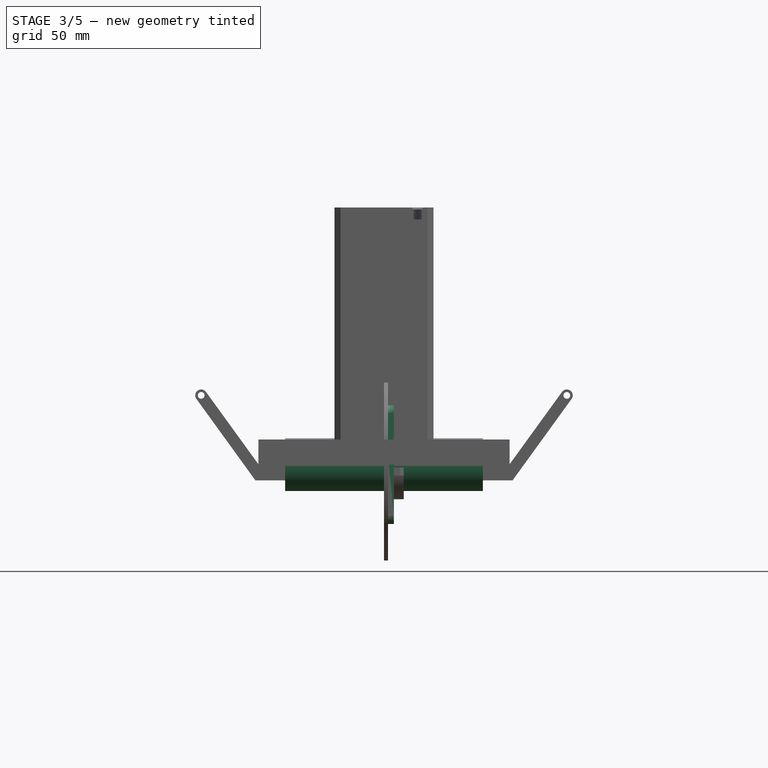
[diagram: stage 3 of 5 — front view after this stage's code; geometry added in this stage tinted green]
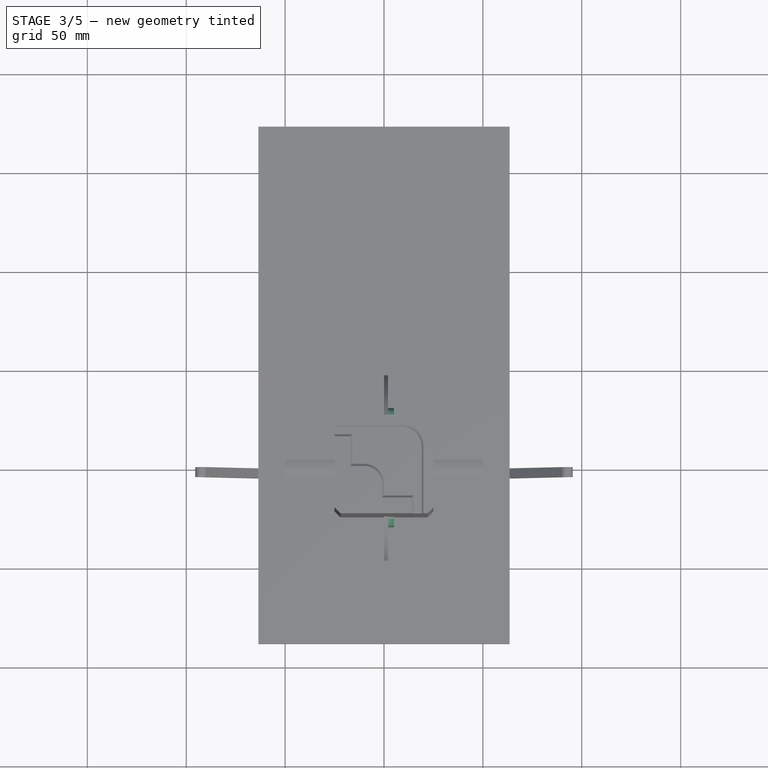
[diagram: stage 3 of 5 — top view after this stage's code; geometry added in this stage tinted green]
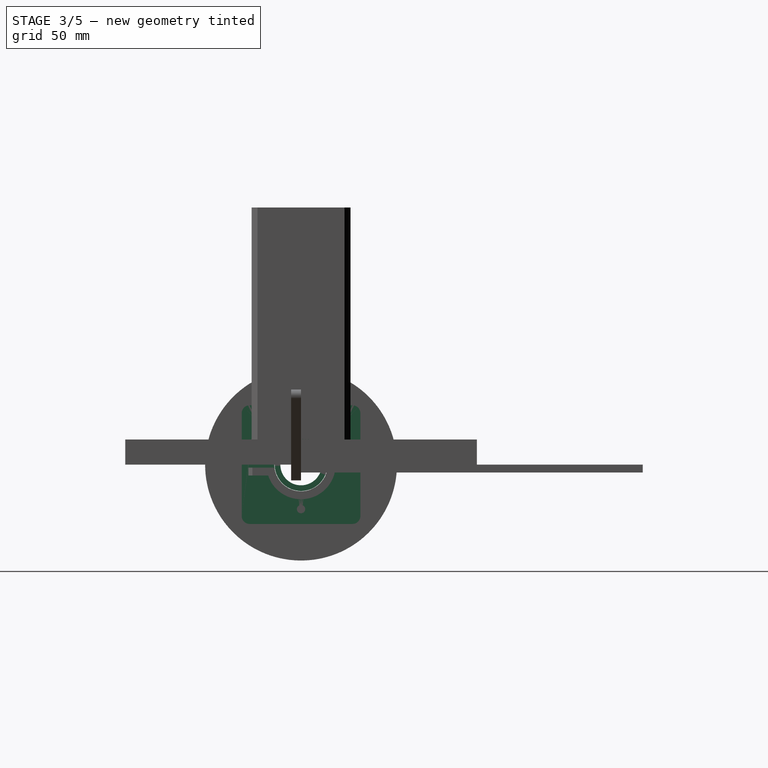
[diagram: stage 3 of 5 — right view after this stage's code; geometry added in this stage tinted green]
FEATURE [Sketcher::SketchObject] Sketch007  label="ThreadProfile001"
  AttachmentOffset = pos=(0,0,0) rot=(0,1,0;0.034907rad)
  FullyConstrained = true
  MapMode = 5
  Placement = pos=(0,0,0) rot=(0.999695,0.01745,0.01745;1.5711rad)
  Support = -> [XZ_Plane003]
  sketch-geometry (4):
    g0: LineSegment StartX=7.1 StartY=-2.25 StartZ=0 EndX=7.1 EndY=-1.25 EndZ=0
    g1: LineSegment StartX=7.1 StartY=-1.25 StartZ=0 EndX=5.85 EndY=0 EndZ=0
    g2: LineSegment StartX=5.85 StartY=-3.5 StartZ=0 EndX=7.1 EndY=-2.25 EndZ=0
    g3: LineSegment StartX=5.85 StartY=0 StartZ=0 EndX=5.85 EndY=-3.5 EndZ=0
  constraints (12):
    c: Coincident(g0,g1)
    c: Vertical(g0)
    c: Coincident(g2,g0)
    c: DistanceY(g0,g0) = 1
    c: DistanceX(g2,g0) = 1.25
    c: Coincident(g3,g1)
    c: Coincident(g3,g2)
    c: Vertical(g3)
    c: DistanceX(g-1,g1) = 5.85
    c: Angle(g3,g1) = 0.785398
    c: DistanceY(g3,g3) = 3.5
    c: PointOnObject(g1,g-1)
FEATURE [PartDesign::AdditiveHelix] AdditiveHelix
  Angle = 0
  Axis = (0,-2e-16,1)
  Base = (0,0,0)
  BaseFeature = -> Pad001
  HasBeenEdited = true
  Height = 20
  LeftHanded = false
  Mode = 0
  Outside = false
  Pitch = 4
  Profile = -> Sketch002
  ReferenceAxis = -> Sketch002 [V_Axis]
  Turns = 5
FEATURE [PartDesign::Groove] Groove
  Angle = 360
  Axis = (0,-2e-16,1)
  Base = (0,0,0)
  BaseFeature = -> AdditiveHelix
  Profile = -> Sketch003
  ReferenceAxis = -> Sketch003 [V_Axis]
  Reversed = true
FEATURE [PartDesign::Pad] Pad004
  BaseFeature = -> Groove
  Direction = (1,1,1)
  Length = 35
  Length2 = 100
  Profile = -> Sketch004
  Type = 0
FEATURE [PartDesign::Groove] Groove001
  Angle = 360
  Axis = (-2e-16,3e-16,1)
  Base = (0,0,0)
  BaseFeature = -> Pad004
  Profile = -> Sketch005
  ReferenceAxis = -> Sketch005 [V_Axis]
  Reversed = true
FEATURE [PartDesign::Body] Body004
  Group = -> [Sketch013,Revolution,Sketch014,Pad007]
  Origin = -> Origin009
  Tip = -> Pad007
FEATURE [App::Part] Part004  label="PTFE_Cap"
  Group = -> [Body004]
  Origin = -> Origin008
  Placement = pos=(-1.3e-14,0,106) rot=(0,1,0;3.14159rad)
FEATURE [Sketcher::SketchObject] Sketch015
  FullyConstrained = true
  MapMode = 5
  Placement = pos=(0,0,0) rot=(0.57735,0.57735,0.57735;2.0944rad)
  Support = -> [YZ_Plane011]
  sketch-geometry (18):
    g0: LineSegment StartX=-26 StartY=30 StartZ=0 EndX=26 EndY=30 EndZ=0
    g1: LineSegment StartX=30 StartY=26 StartZ=0 EndX=30 EndY=-26 EndZ=0
    g2: LineSegment StartX=26 StartY=-30 StartZ=0 EndX=-26 EndY=-30 EndZ=0
    g3: LineSegment StartX=-30 StartY=-26 StartZ=0 EndX=-30 EndY=26 EndZ=0
    g4: ArcOfCircle CenterX=-26 CenterY=26 CenterZ=0 NormalX=0 NormalY=0 NormalZ=1 AngleXU=0 Radius=4 StartAngle=1.5708 EndAngle=3.14159
    g5: ArcOfCircle CenterX=-26 CenterY=-26 CenterZ=0 NormalX=0 NormalY=0 NormalZ=1 AngleXU=0 Radius=4 StartAngle=3.14159 EndAngle=4.71239
    g6: ArcOfCircle CenterX=26 CenterY=-26 CenterZ=0 NormalX=0 NormalY=0 NormalZ=1 AngleXU=0 Radius=4 StartAngle=4.71239 EndAngle=6.28319
    g7: ArcOfCircle CenterX=26 CenterY=26 CenterZ=0 NormalX=0 NormalY=0 NormalZ=1 AngleXU=0 Radius=4 StartAngle=9e-16 EndAngle=1.5708
    g8: Circle CenterX=0 CenterY=0 CenterZ=0 NormalX=0 NormalY=0 NormalZ=1 AngleXU=0 Radius=13.6
    g9: LineSegment StartX=0 StartY=0 StartZ=0 EndX=-26 EndY=26 EndZ=0
    g10: LineSegment StartX=0 StartY=0 StartZ=0 EndX=26 EndY=26 EndZ=0
    g11: LineSegment StartX=-22.5 StartY=22.5 StartZ=0 EndX=22.5 EndY=22.5 EndZ=0
    g12: LineSegment StartX=22.5 StartY=22.5 StartZ=0 EndX=22.5 EndY=-22.5 EndZ=0
    g13: LineSegment StartX=22.5 StartY=-22.5 StartZ=0 EndX=-22.5 EndY=-22.5 EndZ=0
    g14: LineSegment StartX=-22.5 StartY=-22.5 StartZ=0 EndX=-22.5 EndY=22.5 EndZ=0
    g15: Circle CenterX=-22.5 CenterY=22.5 CenterZ=0 NormalX=0 NormalY=0 NormalZ=1 AngleXU=0 Radius=2.1
    g16: Circle CenterX=22.5 CenterY=22.5 CenterZ=0 NormalX=0 NormalY=0 NormalZ=1 AngleXU=0 Radius=2.1
    g17: Circle CenterX=0 CenterY=-22.5 CenterZ=0 NormalX=0 NormalY=0 NormalZ=1 AngleXU=0 Radius=2.1
  constraints (43):
    c: Horizontal(g2)
    c: Vertical(g1)
    c: Equal(g1,g0)
    c: Radius(g4) = 4
    c: Symmetric(g0,g0,g-2)
    c: Symmetric(g3,g3,g-1)
    c: Equal(g4,g7)
    c: Equal(g7,g6)
    c: Equal(g6,g5)
    c: Tangent(g6,g1) = 1.5708
    c: Tangent(g6,g2) = 1.5708
    c: Tangent(g2,g5) = 1.5708
    c: Tangent(g5,g3) = 1.5708
    c: Tangent(g3,g4) = 1.5708
    c: Tangent(g4,g0) = 1.5708
    c: Tangent(g0,g7) = 1.5708
    c: Tangent(g1,g7) = 1.5708
    c: DistanceX(g3,g1) = 60
    c: Coincident(g8,g-1)
    c: Radius(g8) = 13.6
    c: Coincident(g9,g8)
    c: Coincident(g9,g4)
    c: Coincident(g10,g8)
    c: Coincident(g10,g7)
    c: Coincident(g11,g12)
    c: Coincident(g12,g13)
    c: Coincident(g13,g14)
    c: Coincident(g14,g11)
    c: Horizontal(g11)
    c: Horizontal(g13)
    c: Vertical(g12)
    c: Vertical(g14)
    c: PointOnObject(g11,g9)
    c: PointOnObject(g11,g10)
    c: Equal(g12,g11)
    c: Coincident(g15,g11)
    c: Coincident(g16,g11)
    c: PointOnObject(g17,g13)
    c: Equal(g16,g15)
    c: Equal(g15,g17)
    c: Radius(g15) = 2.1
    c: PointOnObject(g17,g-2)
    c: DistanceX(g11,g11) = 45
FEATURE [PartDesign::Pad] Pad008
  Direction = (1,1,1)
  Length = 5
  Length2 = 100
  Placement = pos=(0,0,0) rot=(0.57735,0.57735,0.57735;2.0944rad)
  Profile = -> Sketch015
  Type = 0
FEATURE [Sketcher::SketchObject] Sketch022
  FullyConstrained = true
  MapMode = 5
  Placement = pos=(0,0,0) rot=(0.57735,0.57735,0.57735;2.0944rad)
  Support = -> [YZ_Plane017]
  sketch-geometry (2):
    g0: Circle CenterX=0 CenterY=0 CenterZ=0 NormalX=0 NormalY=0 NormalZ=1 AngleXU=0 Radius=13.335
    g1: Circle CenterX=0 CenterY=0 CenterZ=0 NormalX=0 NormalY=0 NormalZ=1 AngleXU=0 Radius=10.4648
  constraints (4):
    c: Coincident(g0,g-1)
    c: Radius(g0) = 13.335
    c: Coincident(g1,g0)
    c: Radius(g1) = 10.4648
FEATURE [PartDesign::Pad] Pad011
  Direction = (1,1,1)
  Length = 100
  Length2 = 100
  Midplane = true
  Placement = pos=(0,0,0) rot=(0.57735,0.57735,0.57735;2.0944rad)
  Profile = -> Sketch022
  Type = 0
FEATURE [PartDesign::Body] Body008
  Group = -> [Sketch022,Pad011]
  Origin = -> Origin017
  Tip = -> Pad011
FEATURE [App::Part] Part008  label="PVC_pipe"
  Group = -> [Body008]
  Origin = -> Origin016
  Placement = pos=(-83,0,0) rot=(0,0,1;0rad)
FEATURE [PartDesign::Chamfer] Chamfer
  Angle = 45
  Base = -> Groove001 [Edge62]
  BaseFeature = -> Groove001
  ChamferType = 0
  FlipDirection = false
  Size = 2
  Size2 = 1
  SupportTransform = false
FEATURE [PartDesign::Chamfer] Chamfer005
  Angle = 45
  Base = -> Chamfer [Edge253,Edge283,Edge271]
  BaseFeature = -> Chamfer
  ChamferType = 0
  FlipDirection = false
  Size = 0.6
  Size2 = 1
  SupportTransform = false
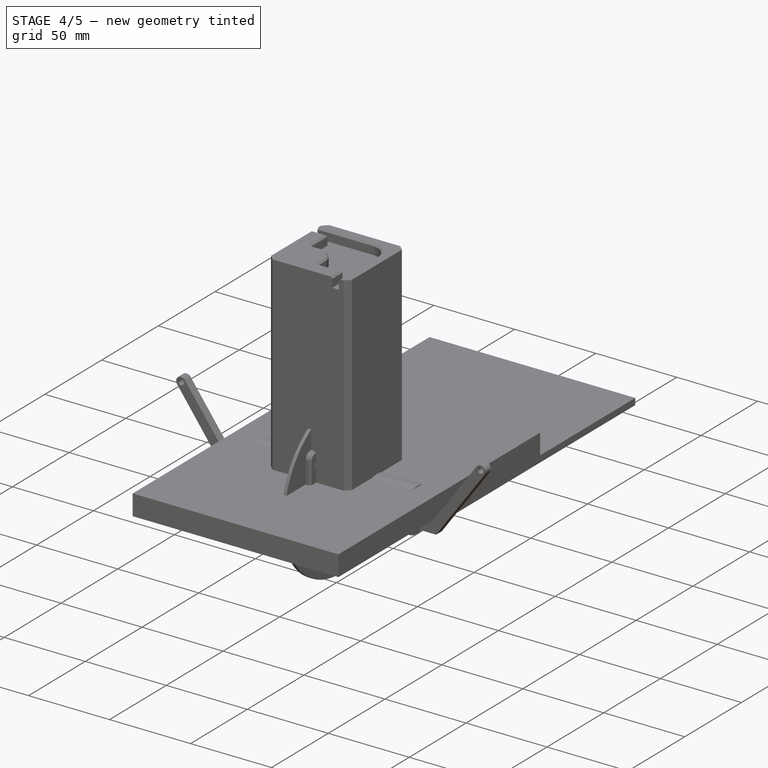
[diagram: stage 4 of 5 — iso view after this stage's code; geometry added in this stage tinted green]
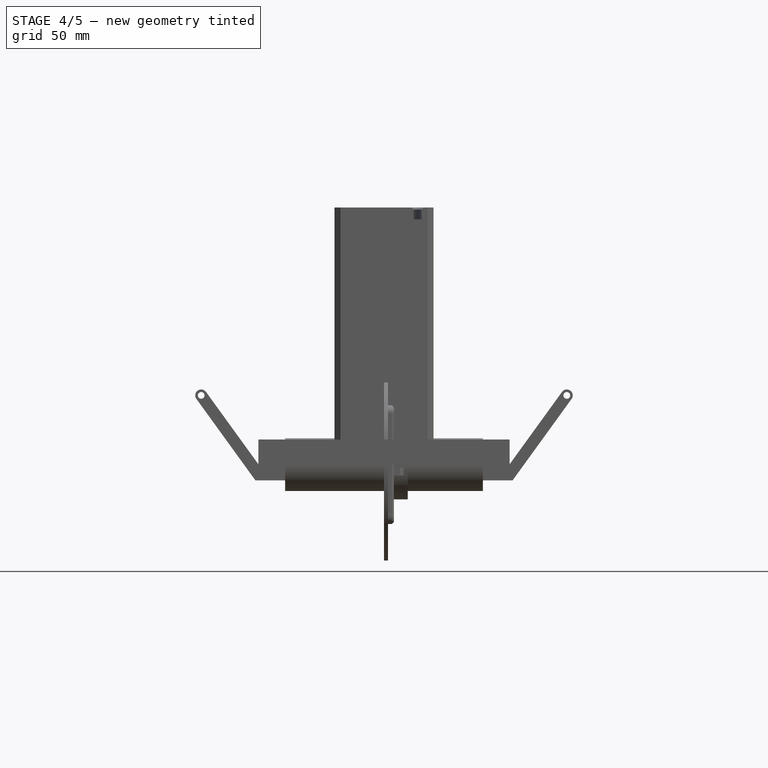
[diagram: stage 4 of 5 — front view after this stage's code; geometry added in this stage tinted green]
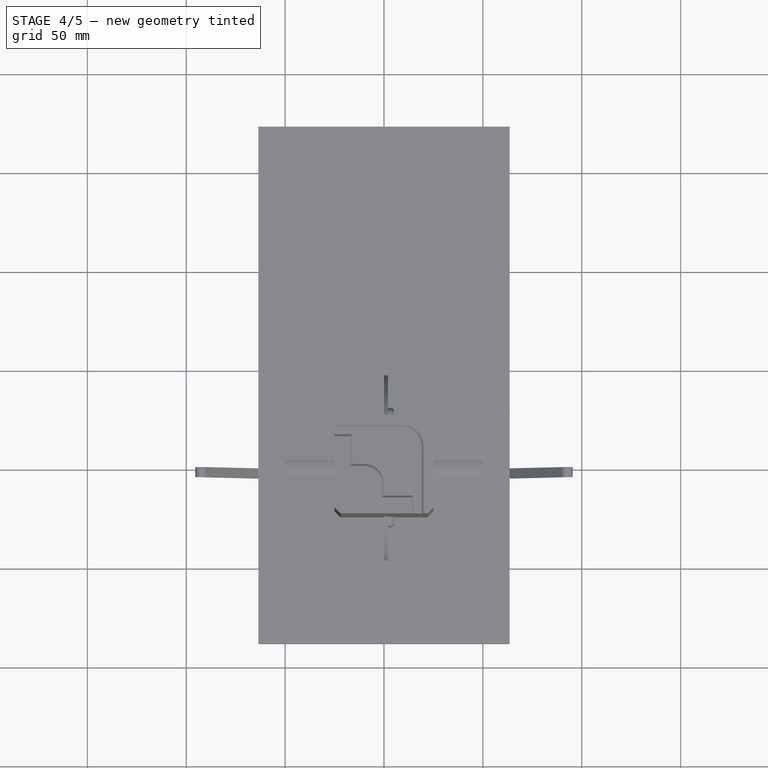
[diagram: stage 4 of 5 — top view after this stage's code; geometry added in this stage tinted green]
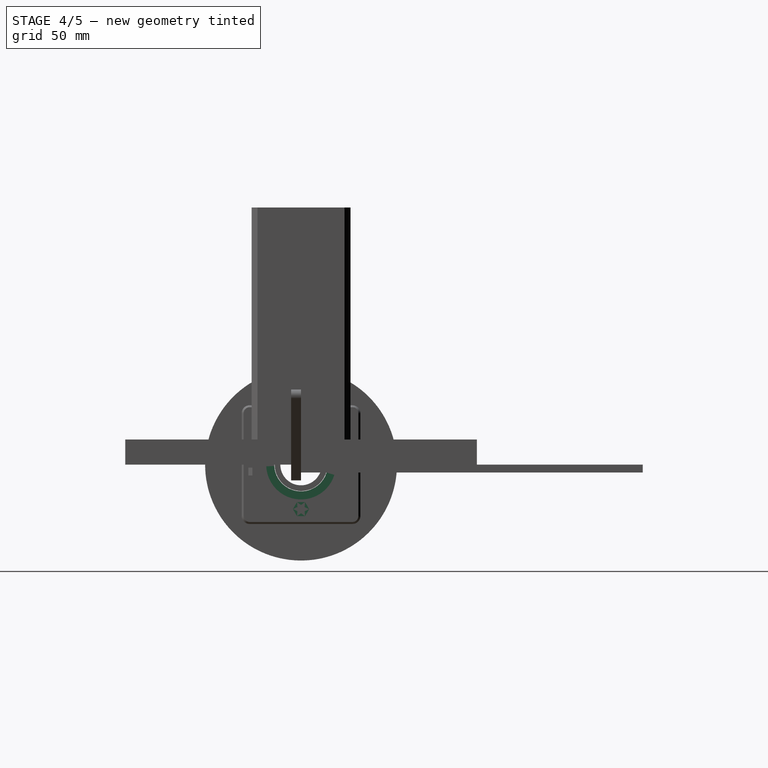
[diagram: stage 4 of 5 — right view after this stage's code; geometry added in this stage tinted green]
FEATURE [PartDesign::Body] Body002
  Group = -> [Sketch009,Pad005]
  Origin = -> Origin005
  Tip = -> Pad005
FEATURE [App::Part] Part002  label="PTFE_Tube"
  Group = -> [Body002]
  Origin = -> Origin004
  Placement = pos=(0,0,3.6) rot=(0,0,1;0rad)
FEATURE [Sketcher::SketchObject] Sketch010
  FullyConstrained = true
  MapMode = 5
  Support = -> [XY_Plane007]
  sketch-geometry (1):
    g0: Circle CenterX=0 CenterY=0 CenterZ=0 NormalX=0 NormalY=0 NormalZ=1 AngleXU=0 Radius=14
  constraints (2):
    c: Coincident(g0,g-1)
    c: Radius(g0) = 14
FEATURE [PartDesign::Pad] Pad006
  Direction = (1,1,1)
  Length = 8
  Length2 = 100
  Profile = -> Sketch010
  Type = 0
FEATURE [Sketcher::SketchObject] Sketch011
  FullyConstrained = true
  MapMode = 5
  Support = -> [XY_Plane007]
  sketch-geometry (2):
    g0: Circle CenterX=0 CenterY=0 CenterZ=0 NormalX=0 NormalY=0 NormalZ=1 AngleXU=0 Radius=12
    g1: Circle CenterX=0 CenterY=0 CenterZ=0 NormalX=0 NormalY=0 NormalZ=1 AngleXU=0 Radius=14
  constraints (4):
    c: Coincident(g0,g-1)
    c: Radius(g0) = 12
    c: Coincident(g1,g0)
    c: Radius(g1) = 14
FEATURE [PartDesign::Pocket] Pocket001
  BaseFeature = -> Pad006
  Length = 6
  Length2 = 100
  Profile = -> Sketch011
  Reversed = true
  Type = 0
FEATURE [PartDesign::Body] Body003
  Group = -> [Sketch010,Pad006,Sketch011,Pocket001,Sketch012,Groove002]
  Origin = -> Origin007
  Placement = pos=(0,0,-1) rot=(0,0,1;0rad)
  Tip = -> Groove002
FEATURE [App::Part] Part003  label="Filiment_Cap"
  Group = -> [Body003]
  Origin = -> Origin006
  Placement = pos=(0,0,28) rot=(0,0,1;0rad)
FEATURE [Sketcher::SketchObject] Sketch013
  FullyConstrained = true
  MapMode = 5
  Placement = pos=(0,0,0) rot=(0.57735,0.57735,0.57735;2.0944rad)
  Support = -> [YZ_Plane009]
  sketch-geometry (13):
    g0: LineSegment StartX=-7 StartY=0 StartZ=0 EndX=-7 EndY=10 EndZ=0
    g1: LineSegment StartX=-7 StartY=10 StartZ=0 EndX=-3.8 EndY=15.5426 EndZ=0
    g2: LineSegment StartX=-3.8 StartY=15.5426 StartZ=0 EndX=-3.8 EndY=31.5426 EndZ=0
    g3: LineSegment StartX=-3.8 StartY=31.5426 StartZ=0 EndX=-4.99707 EndY=34.8315 EndZ=0
    g4: LineSegment StartX=-4.99707 StartY=34.8315 StartZ=0 EndX=-2.99707 EndY=34.8315 EndZ=0
    g5: LineSegment StartX=-2.99707 StartY=34.8315 StartZ=0 EndX=-2.2 EndY=31.5426 EndZ=0
    g6: LineSegment StartX=-1.8 StartY=15.5426 StartZ=0 EndX=-5 EndY=10 EndZ=0
    g7: LineSegment StartX=-5 StartY=10 StartZ=0 EndX=-5 EndY=2 EndZ=0
    g8: LineSegment StartX=-5 StartY=2 StartZ=0 EndX=0 EndY=2 EndZ=0
    g9: LineSegment StartX=0 StartY=2 StartZ=0 EndX=0 EndY=0 EndZ=0
    g10: LineSegment StartX=-1.8 StartY=15.5426 StartZ=0 EndX=-1.8 EndY=16.5426 EndZ=0
    g11: LineSegment StartX=-1.8 StartY=16.5426 StartZ=0 EndX=-2.2 EndY=31.5426 EndZ=0
    g12: LineSegment StartX=-7 StartY=0 StartZ=0 EndX=0 EndY=0 EndZ=0
  constraints (39):
    c: Vertical(g0)
    c: Coincident(g0,g1)
    c: Coincident(g1,g2)
    c: Vertical(g2)
    c: Coincident(g2,g3)
    c: Coincident(g3,g4)
    c: Coincident(g4,g5)
    c: Coincident(g6,g7)
    c: Vertical(g7)
    c: Coincident(g7,g8)
    c: PointOnObject(g8,g-2)
    c: Horizontal(g8)
    c: Coincident(g8,g9)
    c: DistanceX(g8,g8) = 5
    c: DistanceX(g0,g7) = 2
    c: Horizontal(g6,g0)
    c: Angle(g7,g6) = 2.61799
    c: Parallel(g6,g1)
    c: Vertical(g10)
    c: Coincident(g10,g11)
    c: Horizontal(g6,g1)
    c: DistanceY(g10,g10) = 1
    c: Coincident(g5,g11)
    c: Horizontal(g4)
    c: DistanceX(g4,g4) = 2
    c: Distance(g3) = 3.5
    c: Angle(g3,g2) = 2.79253
    c: DistanceX(g10,g8) = 1.8
    c: DistanceX(g5,g8) = 2.2
    c: DistanceY(g2,g2) = 16
    c: Horizontal(g5,g2)
    c: Coincident(g6,g10)
    c: PointOnObject(g0,g-1)
    c: Coincident(g12,g0)
    c: Coincident(g12,g9)
    c: Horizontal(g12)
    c: DistanceY(g9,g9) = 2
    c: DistanceX(g12,g12) = 7
    c: DistanceY(g0,g0) = 10
FEATURE [PartDesign::Revolution] Revolution
  Angle = 360
  Axis = (-2e-16,3e-16,1)
  Base = (0,0,0)
  Placement = pos=(0,0,0) rot=(0.57735,0.57735,0.57735;2.0944rad)
  Profile = -> Sketch013
  ReferenceAxis = -> Sketch013 [V_Axis]
FEATURE [Sketcher::SketchObject] Sketch014
  FullyConstrained = true
  MapMode = 5
  Support = -> [XY_Plane009]
  sketch-geometry (12):
    g0: Circle CenterX=0 CenterY=0 CenterZ=0 NormalX=0 NormalY=0 NormalZ=1 AngleXU=0 Radius=7
    g1: Circle CenterX=0 CenterY=15 CenterZ=0 NormalX=0 NormalY=0 NormalZ=1 AngleXU=0 Radius=3
    g2: Circle CenterX=0 CenterY=-15 CenterZ=0 NormalX=0 NormalY=0 NormalZ=1 AngleXU=0 Radius=3
    g3: LineSegment StartX=-2.89137 StartY=15.8 StartZ=0 EndX=-6.74652 EndY=1.86667 EndZ=0
    g4: LineSegment StartX=-6.74652 StartY=-1.86667 StartZ=0 EndX=-2.89137 EndY=-15.8 EndZ=0
    g5: LineSegment StartX=2.89137 StartY=-15.8 StartZ=0 EndX=6.74652 EndY=-1.86667 EndZ=0
    g6: LineSegment StartX=6.74652 StartY=1.86667 StartZ=0 EndX=2.89137 EndY=15.8 EndZ=0
    g7: ArcOfCircle CenterX=0 CenterY=15 CenterZ=0 NormalX=0 NormalY=0 NormalZ=1 AngleXU=0 Radius=3 StartAngle=0.269933 EndAngle=2.87166
    g8: ArcOfCircle CenterX=0 CenterY=0 CenterZ=0 NormalX=0 NormalY=0 NormalZ=1 AngleXU=0 Radius=7 StartAngle=6.01325 EndAngle=6.55312
    g9: ArcOfCircle CenterX=0 CenterY=0 CenterZ=0 NormalX=0 NormalY=0 NormalZ=1 AngleXU=0 Radius=7 StartAngle=2.87166 EndAngle=3.41153
    g10: ArcOfCircle CenterX=0 CenterY=-15 CenterZ=0 NormalX=0 NormalY=0 NormalZ=1 AngleXU=0 Radius=3 StartAngle=3.41153 EndAngle=6.01325
    g11: Circle CenterX=0 CenterY=0 CenterZ=0 NormalX=0 NormalY=0 NormalZ=1 AngleXU=0 Radius=18
  constraints (25):
    c: Coincident(g0,g-1)
    c: PointOnObject(g1,g-2)
    c: Equal(g2,g1)
    c: Symmetric(g1,g2,g-1)
    c: Radius(g0) = 7
    c: PointOnObject(g3,g1)
    c: PointOnObject(g3,g0)
    c: PointOnObject(g4,g2)
    c: PointOnObject(g5,g0)
    c: Coincident(g7,g1)
    c: Coincident(g8,g-1)
    c: Coincident(g9,g8)
    c: Coincident(g10,g2)
    c: Tangent(g10,g5) = -1.5708
    c: Tangent(g10,g4) = -1.5708
    c: Tangent(g9,g4) = -1.5708
    c: Tangent(g9,g3) = -1.5708
    c: Tangent(g7,g3) = -1.5708
    c: Tangent(g7,g6) = -1.5708
    c: Tangent(g8,g6) = -1.5708
    c: Tangent(g8,g5) = -1.5708
    c: Coincident(g11,g8)
    c: Radius(g11) = 18
    c: Tangent(g7,g11)
    c: Radius(g1) = 3
FEATURE [PartDesign::Pad] Pad007
  BaseFeature = -> Revolution
  Direction = (1,1,1)
  Length = 2
  Length2 = 100
  Placement = pos=(0,0,0) rot=(0.57735,0.57735,0.57735;2.0944rad)
  Profile = -> Sketch014
  Type = 0
FEATURE [Sketcher::SketchObject] Sketch016
  FullyConstrained = true
  MapMode = 5
  Placement = pos=(0,0,0) rot=(0.57735,0.57735,0.57735;2.0944rad)
  Support = -> [YZ_Plane011]
  sketch-geometry (8):
    g0: ArcOfCircle CenterX=0 CenterY=0 CenterZ=0 NormalX=0 NormalY=0 NormalZ=1 AngleXU=0 Radius=13.6 StartAngle=3.14159 EndAngle=6.28319
    g1: ArcOfCircle CenterX=0 CenterY=0 CenterZ=0 NormalX=0 NormalY=0 NormalZ=1 AngleXU=0 Radius=17.6 StartAngle=3.14159 EndAngle=6.28319
    g2: LineSegment StartX=-13.6 StartY=1.7e-15 StartZ=0 EndX=-13.6 EndY=4 EndZ=0
    g3: LineSegment StartX=-17.6 StartY=4 StartZ=0 EndX=-17.6 EndY=2.2e-15 EndZ=0
    g4: LineSegment StartX=13.6 StartY=-3.3e-15 StartZ=0 EndX=13.6 EndY=4 EndZ=0
    g5: LineSegment StartX=17.6 StartY=-4.3e-15 StartZ=0 EndX=17.6 EndY=4 EndZ=0
    g6: ArcOfCircle CenterX=-15.6 CenterY=4 CenterZ=0 NormalX=0 NormalY=0 NormalZ=1 AngleXU=0 Radius=2 StartAngle=3e-16 EndAngle=3.14159
    g7: ArcOfCircle CenterX=15.6 CenterY=4 CenterZ=0 NormalX=0 NormalY=0 NormalZ=1 AngleXU=0 Radius=2 StartAngle=0 EndAngle=3.14159
  constraints (18):
    c: Coincident(g0,g-1)
    c: PointOnObject(g0,g-1)
    c: PointOnObject(g0,g-1)
    c: DistanceX(g1,g0) = 4
    c: Coincident(g1,g0)
    c: Radius(g0) = 13.6
    c: PointOnObject(g3,g-1)
    c: PointOnObject(g5,g-1)
    c: Equal(g2,g4)
    c: Tangent(g6,g2) = -1.5708
    c: Tangent(g6,g3) = -1.5708
    c: DistanceY(g3,g3) = 4
    c: Tangent(g4,g0) = -1.5708
    c: Tangent(g5,g1) = -1.5708
    c: Tangent(g2,g0) = 1.5708
    c: Tangent(g3,g1) = -1.5708
    c: Tangent(g7,g4) = 1.5708
    c: Tangent(g7,g5) = -1.5708
FEATURE [Sketcher::SketchObject] Sketch017
  FullyConstrained = true
  MapMode = 5
  Placement = pos=(0,0,0) rot=(1,0,0;1.5708rad)
  Support = -> [XZ_Plane011]
  sketch-geometry (5):
    g0: LineSegment StartX=5 StartY=30 StartZ=0 EndX=5 EndY=0 EndZ=0
    g1: LineSegment StartX=4.1449 StartY=15 StartZ=0 EndX=1.5 EndY=30 EndZ=0
    g2: LineSegment StartX=1.5 StartY=30 StartZ=0 EndX=5 EndY=30 EndZ=0
    g3: LineSegment StartX=4.1449 StartY=15 StartZ=0 EndX=1.5 EndY=0 EndZ=0
    g4: LineSegment StartX=5 StartY=0 StartZ=0 EndX=1.5 EndY=0 EndZ=0
  constraints (15):
    c: Vertical(g0)
    c: Coincident(g1,g2)
    c: Coincident(g2,g0)
    c: Horizontal(g2)
    c: DistanceX(g-1,g1) = 1.5
    c: DistanceX(g-1,g0) = 5
    c: Angle(g1,g2) = 1.39626
    c: DistanceY(g-1,g1) = 30
    c: PointOnObject(g3,g-1)
    c: Coincident(g1,g3)
    c: PointOnObject(g4,g-1)
    c: Coincident(g4,g3)
    c: Equal(g2,g4)
    c: Coincident(g0,g4)
    c: Equal(g1,g3)
FEATURE [PartDesign::Plane] DatumPlane
  AttachmentOffset = pos=(0,0,5) rot=(0,0,1;0rad)
  Length = 72
  MapMode = 2
  Placement = pos=(5,-1.1e-15,1.1e-15) rot=(0.57735,0.57735,0.57735;2.0944rad)
  ResizeMode = 0
  Support = -> [YZ_Plane011]
  Width = 72
FEATURE [Sketcher::SketchObject] Sketch018
  FullyConstrained = true
  MapMode = 5
  Placement = pos=(5,-1.1e-15,1.1e-15) rot=(0.57735,0.57735,0.57735;2.0944rad)
  Support = -> [DatumPlane]
  sketch-geometry (25):
    g0: LineSegment StartX=-22.5 StartY=22.5 StartZ=0 EndX=22.5 EndY=22.5 EndZ=0
    g1: LineSegment StartX=-18.4008 StartY=22.5 StartZ=0 EndX=-20.4504 EndY=26.05 EndZ=0
    g2: LineSegment StartX=-20.4504 StartY=26.05 StartZ=0 EndX=-24.5496 EndY=26.05 EndZ=0
    g3: LineSegment StartX=-24.5496 StartY=26.05 StartZ=0 EndX=-26.5992 EndY=22.5 EndZ=0
    g4: LineSegment StartX=-26.5992 StartY=22.5 StartZ=0 EndX=-24.5496 EndY=18.95 EndZ=0
    g5: LineSegment StartX=-24.5496 StartY=18.95 StartZ=0 EndX=-20.4504 EndY=18.95 EndZ=0
    g6: LineSegment StartX=-20.4504 StartY=18.95 StartZ=0 EndX=-18.4008 EndY=22.5 EndZ=0
    g7: Circle CenterX=-22.5 CenterY=22.5 CenterZ=0 NormalX=0 NormalY=0 NormalZ=1 AngleXU=0 Radius=4.09919
    g8: LineSegment StartX=26.5992 StartY=22.5 StartZ=0 EndX=24.5496 EndY=26.05 EndZ=0
    g9: LineSegment StartX=24.5496 StartY=26.05 StartZ=0 EndX=20.4504 EndY=26.05 EndZ=0
    g10: LineSegment StartX=20.4504 StartY=26.05 StartZ=0 EndX=18.4008 EndY=22.5 EndZ=0
    g11: LineSegment StartX=18.4008 StartY=22.5 StartZ=0 EndX=20.4504 EndY=18.95 EndZ=0
    g12: LineSegment StartX=20.4504 StartY=18.95 StartZ=0 EndX=24.5496 EndY=18.95 EndZ=0
    g13: LineSegment StartX=24.5496 StartY=18.95 StartZ=0 EndX=26.5992 EndY=22.5 EndZ=0
    g14: Circle CenterX=22.5 CenterY=22.5 CenterZ=0 NormalX=0 NormalY=0 NormalZ=1 AngleXU=0 Radius=4.09919
    g15: LineSegment StartX=2.04959 StartY=-26.05 StartZ=0 EndX=4.09919 EndY=-22.5 EndZ=0
    g16: LineSegment StartX=4.09919 StartY=-22.5 StartZ=0 EndX=2.04959 EndY=-18.95 EndZ=0
    g17: LineSegment StartX=2.04959 StartY=-18.95 StartZ=0 EndX=-2.04959 EndY=-18.95 EndZ=0
    g18: LineSegment StartX=-2.04959 StartY=-18.95 StartZ=0 EndX=-4.09919 EndY=-22.5 EndZ=0
    g19: LineSegment StartX=-4.09919 StartY=-22.5 StartZ=0 EndX=-2.04959 EndY=-26.05 EndZ=0
    g20: LineSegment StartX=-2.04959 StartY=-26.05 StartZ=0 EndX=2.04959 EndY=-26.05 EndZ=0
    g21: Circle CenterX=0 CenterY=-22.5 CenterZ=0 NormalX=0 NormalY=0 NormalZ=1 AngleXU=0 Radius=4.09919
    g22: LineSegment StartX=22.5 StartY=-22.5 StartZ=0 EndX=-22.5 EndY=-22.5 EndZ=0
    g23: LineSegment StartX=-22.5 StartY=22.5 StartZ=0 EndX=-22.5 EndY=-22.5 EndZ=0
    g24: LineSegment StartX=22.5 StartY=22.5 StartZ=0 EndX=22.5 EndY=-22.5 EndZ=0
  constraints (59):
    c: DistanceX(g0,g0) = 45
    c: Symmetric(g0,g0,g-2)
    c: Coincident(g1,g2)
    c: Coincident(g2,g3)
    c: Coincident(g3,g4)
    c: Coincident(g4,g5)
    c: Coincident(g5,g6)
    c: Coincident(g6,g1)
    c: Equal(g1, g2-g6) x5
    c: PointOnObject(g1,g7)
    c: PointOnObject(g2,g7)
    c: PointOnObject(g3,g7)
    c: PointOnObject(g4,g7)
    c: PointOnObject(g5,g7)
    c: PointOnObject(g6,g7)
    c: Coincident(g7,g0)
    c: Horizontal(g2)
    c: Coincident(g8,g9)
    c: Coincident(g9,g10)
    c: Coincident(g10,g11)
    c: Coincident(g11,g12)
    c: Coincident(g12,g13)
    c: Coincident(g13,g8)
    c: Equal(g8, g9-g13) x5
    c: PointOnObject(g8,g14)
    c: PointOnObject(g9,g14)
    c: PointOnObject(g10,g14)
    c: PointOnObject(g11,g14)
    c: PointOnObject(g12,g14)
    c: PointOnObject(g13,g14)
    c: Coincident(g14,g0)
    c: Horizontal(g9)
    c: Equal(g14,g7)
    c: Coincident(g15,g16)
    c: Coincident(g16,g17)
    c: Coincident(g17,g18)
    c: Coincident(g18,g19)
    c: Coincident(g19,g20)
    c: Coincident(g20,g15)
    c: Equal(g15, g16-g20) x5
    c: PointOnObject(g15,g21)
    c: PointOnObject(g16,g21)
    c: PointOnObject(g17,g21)
    c: PointOnObject(g18,g21)
    c: PointOnObject(g19,g21)
    c: PointOnObject(g20,g21)
    c: Horizontal(g17)
    c: Equal(g7,g21)
    c: Horizontal(g22)
    c: PointOnObject(g21,g22)
    c: PointOnObject(g21,g-2)
    c: Coincident(g23,g0)
    c: Coincident(g23,g22)
    c: Vertical(g23)
    c: Coincident(g24,g0)
    c: Coincident(g24,g22)
    c: Equal(g24,g0)
    c: Symmetric(g0,g22,g-1)
    c: Distance(g5,g3) = 7.1
FEATURE [PartDesign::Pad] Pad009
  BaseFeature = -> Pad008
  Direction = (1,1,1)
  Length = 12
  Length2 = 100
  Placement = pos=(0,0,0) rot=(0.57735,0.57735,0.57735;2.0944rad)
  Profile = -> Sketch016
  Type = 0
FEATURE [PartDesign::Pocket] Pocket002
  BaseFeature = -> Pad009
  Length = 27.2
  Length2 = 100
  Midplane = true
  Placement = pos=(0,0,0) rot=(0.57735,0.57735,0.57735;2.0944rad)
  Profile = -> Sketch017
  Type = 0
FEATURE [PartDesign::Pocket] Pocket003
  BaseFeature = -> Pocket002
  Length = 2
  Length2 = 100
  Placement = pos=(0,0,0) rot=(0.57735,0.57735,0.57735;2.0944rad)
  Profile = -> Sketch018
  Type = 0
FEATURE [PartDesign::Chamfer] Chamfer003
  Angle = 45
  Base = -> Pocket003 [Edge4]
  BaseFeature = -> Pocket003
  ChamferType = 0
  FlipDirection = false
  Placement = pos=(0,0,0) rot=(0.57735,0.57735,0.57735;2.0944rad)
  Size = 1
  Size2 = 1
  SupportTransform = false
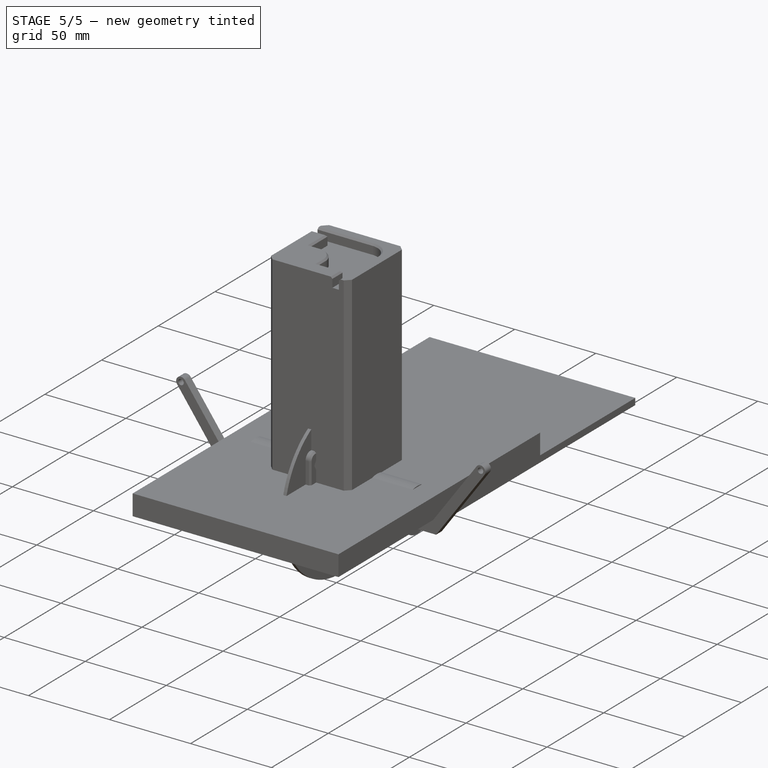
[diagram: stage 5 of 5 — iso view after this stage's code; geometry added in this stage tinted green]
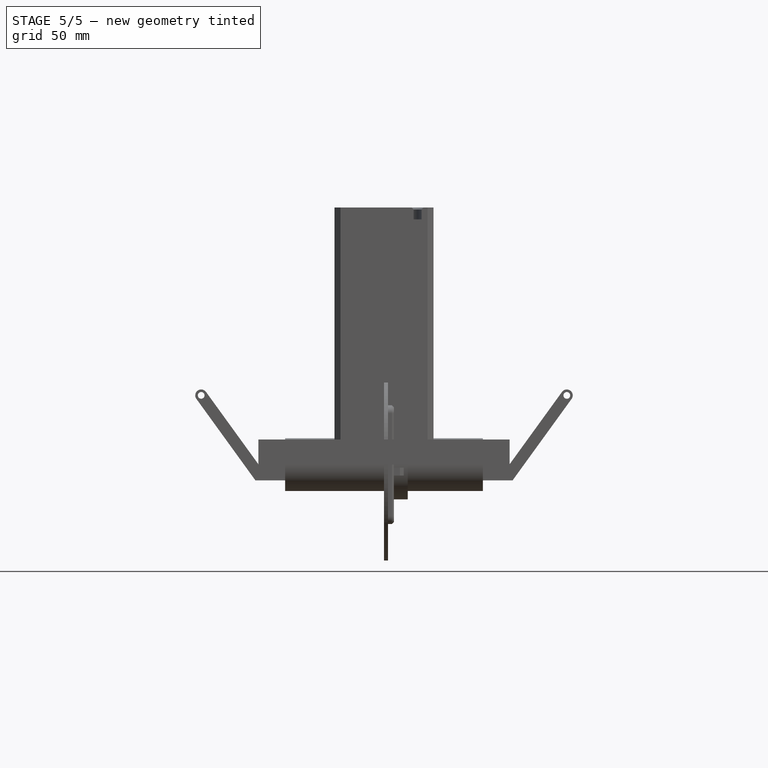
[diagram: stage 5 of 5 — front view after this stage's code; geometry added in this stage tinted green]
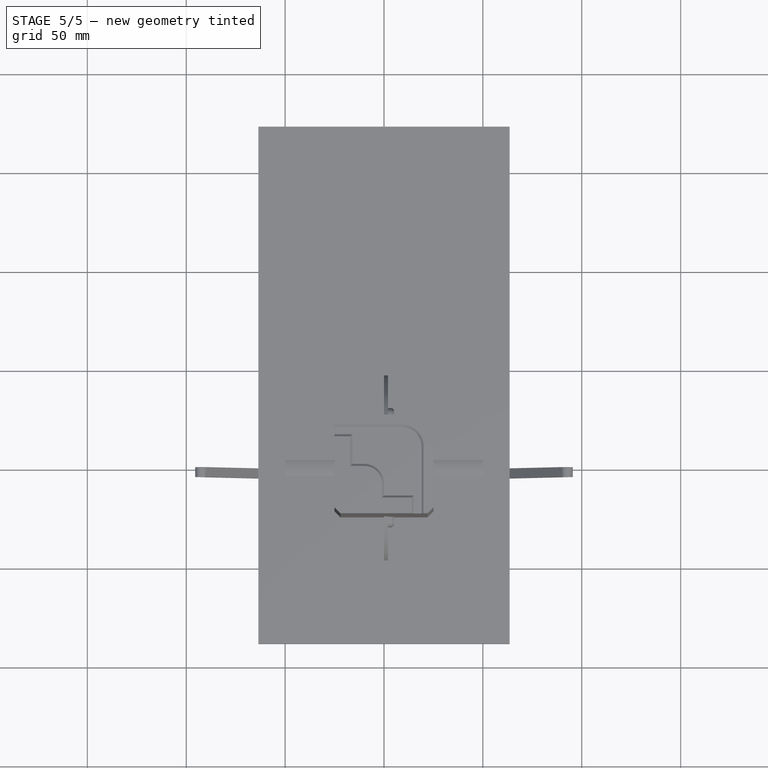
[diagram: stage 5 of 5 — top view after this stage's code; geometry added in this stage tinted green]
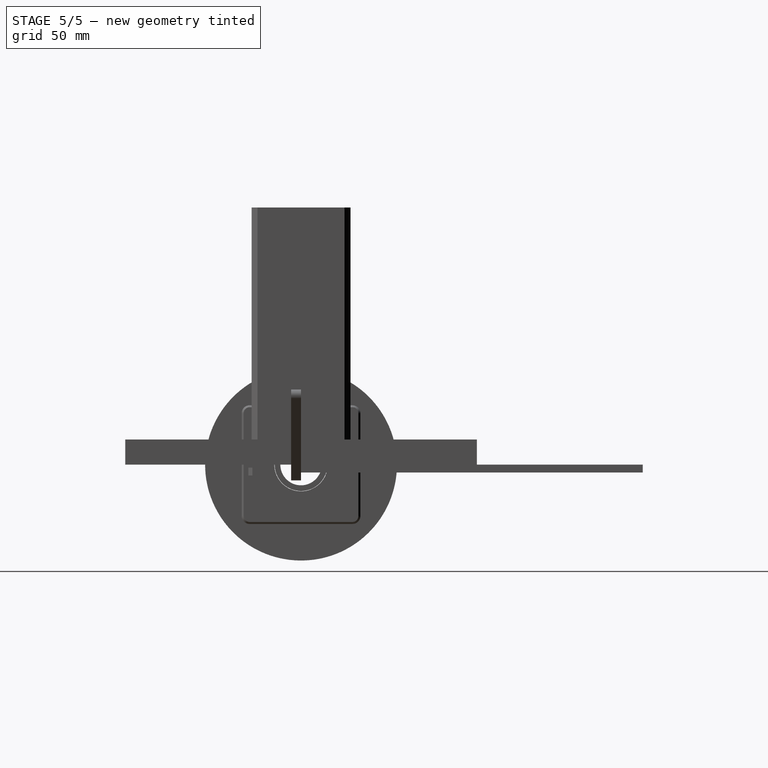
[diagram: stage 5 of 5 — right view after this stage's code; geometry added in this stage tinted green]
FEATURE [Sketcher::SketchObject] Sketch002  label="ThreadProfile"
  AttachmentOffset = pos=(0,0,0) rot=(0,1,0;0.034907rad)
  FullyConstrained = true
  MapMode = 5
  Placement = pos=(0,0,0) rot=(0.999695,0.01745,0.01745;1.5711rad)
  Support = -> [XZ_Plane001]
  sketch-geometry (4):
    g0: LineSegment StartX=6.9 StartY=1.25 StartZ=0 EndX=6.9 EndY=2.25 EndZ=0
    g1: LineSegment StartX=6.9 StartY=2.25 StartZ=0 EndX=5.65 EndY=3.5 EndZ=0
    g2: LineSegment StartX=5.65 StartY=3.5 StartZ=0 EndX=5.65 EndY=0 EndZ=0
    g3: LineSegment StartX=5.65 StartY=0 StartZ=0 EndX=6.9 EndY=1.25 EndZ=0
  constraints (13):
    c: Coincident(g0,g1)
    c: Coincident(g1,g2)
    c: Vertical(g2)
    c: Vertical(g0)
    c: Coincident(g3,g2)
    c: Coincident(g3,g0)
    c: Angle(g2,g1) = 0.785398
    c: Angle(g3,g2) = 0.785398
    c: DistanceY(g0,g0) = 1
    c: DistanceX(g2,g0) = 1.25
    c: DistanceX(g-1,g2) = 5.65
    c: PointOnObject(g2,g-1)
    c: DistanceY(g2,g2) = 3.5
FEATURE [Sketcher::SketchObject] Sketch003
  FullyConstrained = true
  MapMode = 5
  Placement = pos=(0,0,0) rot=(1,0,0;1.5708rad)
  Support = -> [XZ_Plane001]
  sketch-geometry (4):
    g0: LineSegment StartX=0 StartY=25 StartZ=0 EndX=-15 EndY=25 EndZ=0
    g1: LineSegment StartX=-15 StartY=25 StartZ=0 EndX=-15 EndY=20 EndZ=0
    g2: LineSegment StartX=-15 StartY=20 StartZ=0 EndX=0 EndY=20 EndZ=0
    g3: LineSegment StartX=0 StartY=20 StartZ=0 EndX=0 EndY=25 EndZ=0
  constraints (12):
    c: Coincident(g0,g1)
    c: Coincident(g1,g2)
    c: Coincident(g2,g3)
    c: Coincident(g3,g0)
    c: Horizontal(g0)
    c: Horizontal(g2)
    c: Vertical(g1)
    c: Vertical(g3)
    c: PointOnObject(g0,g-2)
    c: DistanceX(g0,g0) = 15
    c: DistanceY(g1,g1) = 5
    c: DistanceY(g-1,g2) = 20
FEATURE [Sketcher::SketchObject] Sketch004
  FullyConstrained = true
  MapMode = 5
  Support = -> [XY_Plane001]
  sketch-geometry (21):
    g0: ArcOfCircle CenterX=0 CenterY=0 CenterZ=0 NormalX=0 NormalY=0 NormalZ=1 AngleXU=0 Radius=5.9 StartAngle=5.82319 EndAngle=7.79038
    g1: ArcOfCircle CenterX=0 CenterY=0 CenterZ=0 NormalX=0 NormalY=0 NormalZ=1 AngleXU=0 Radius=1.9 StartAngle=5.95826 EndAngle=7.65531
    g2: LineSegment StartX=-1.80058 StartY=-0.606553 StartZ=0 EndX=-5.28672 EndY=-2.61928 EndZ=0
    g3: LineSegment StartX=-1.42558 StartY=-1.25607 StartZ=0 EndX=-4.91172 EndY=-3.26879 EndZ=0
    g4: LineSegment StartX=1.42558 StartY=-1.25607 StartZ=0 EndX=4.91172 EndY=-3.26879 EndZ=0
    g5: LineSegment StartX=1.80058 StartY=-0.606553 StartZ=0 EndX=5.28672 EndY=-2.61928 EndZ=0
    g6: LineSegment StartX=0.375 StartY=1.86263 StartZ=0 EndX=0.375 EndY=5.88807 EndZ=0
    g7: LineSegment StartX=-0.375 StartY=1.86263 StartZ=0 EndX=-0.375 EndY=5.88807 EndZ=0
    g8: LineSegment StartX=4.91172 StartY=-3.26879 StartZ=0 EndX=-4.91172 EndY=-3.26879 EndZ=0
    g9: LineSegment StartX=-5.28672 StartY=-2.61928 StartZ=0 EndX=-0.375 EndY=5.88807 EndZ=0
    g10: LineSegment StartX=0.375 StartY=5.88807 StartZ=0 EndX=5.28672 EndY=-2.61928 EndZ=0
    g11: LineSegment StartX=-1.80058 StartY=-0.606553 StartZ=0 EndX=-1.42558 EndY=-1.25607 EndZ=0
    g12: LineSegment StartX=1.42558 StartY=-1.25607 StartZ=0 EndX=1.80058 EndY=-0.606553 EndZ=0
    g13: LineSegment StartX=0.375 StartY=1.86263 StartZ=0 EndX=-0.375 EndY=1.86263 EndZ=0
    g14: ArcOfCircle CenterX=0 CenterY=0 CenterZ=0 NormalX=0 NormalY=0 NormalZ=1 AngleXU=0 Radius=1.9 StartAngle=3.86386 EndAngle=5.56091
    g15: ArcOfCircle CenterX=0 CenterY=0 CenterZ=0 NormalX=0 NormalY=0 NormalZ=1 AngleXU=0 Radius=1.9 StartAngle=1.76947 EndAngle=3.46652
    g16: ArcOfCircle CenterX=0 CenterY=0 CenterZ=0 NormalX=0 NormalY=0 NormalZ=1 AngleXU=0 Radius=5.9 StartAngle=3.72879 EndAngle=5.69598
    g17: ArcOfCircle CenterX=0 CenterY=0 CenterZ=0 NormalX=0 NormalY=0 NormalZ=1 AngleXU=0 Radius=5.9 StartAngle=1.6344 EndAngle=3.60159
    g18: LineSegment StartX=-0.375 StartY=1.86263 StartZ=0 EndX=-1.80058 EndY=-0.606553 EndZ=0
    g19: LineSegment StartX=-1.42558 StartY=-1.25607 StartZ=0 EndX=1.42558 EndY=-1.25607 EndZ=0
    g20: LineSegment StartX=1.80058 StartY=-0.606553 StartZ=0 EndX=0.375 EndY=1.86263 EndZ=0
  constraints (55):
    c: Coincident(g0,g-1)
    c: Coincident(g1,g0)
    c: Radius(g1) = 1.9
    c: Radius(g0) = 5.9
    c: PointOnObject(g6,g1)
    c: Parallel(g3,g2)
    c: Parallel(g6,g7)
    c: Parallel(g5,g4)
    c: Coincident(g8,g4)
    c: Coincident(g8,g3)
    c: Coincident(g9,g2)
    c: Coincident(g9,g7)
    c: Coincident(g10,g6)
    c: Coincident(g10,g5)
    c: Horizontal(g8)
    c: Coincident(g11,g2)
    c: Coincident(g11,g3)
    c: Coincident(g12,g4)
    c: Coincident(g12,g5)
    c: Coincident(g13,g6)
    c: Coincident(g13,g7)
    c: Horizontal(g13)
    c: Equal(g8,g9)
    c: Equal(g10,g9)
    c: Coincident(g1,g5)
    c: Coincident(g14,g4)
    c: Equal(g1,g14)
    c: Coincident(g15,g2)
    c: Coincident(g14,g3)
    c: Coincident(g1,g14)
    c: Equal(g1,g15)
    c: PointOnObject(g1,g13)
    c: Coincident(g15,g7)
    c: Coincident(g1,g15)
    c: Coincident(g0,g5)
    c: Coincident(g16,g4)
    c: Equal(g0,g16)
    c: Coincident(g17,g2)
    c: Coincident(g16,g3)
    c: Coincident(g0,g16)
    c: Equal(g0,g17)
    c: Coincident(g0,g6)
    c: Coincident(g17,g7)
    c: Coincident(g0,g17)
    c: Equal(g11,g13)
    c: Equal(g13,g12)
    c: DistanceX(g13,g13) = 0.75
    c: Coincident(g18,g7)
    c: Coincident(g18,g2)
    c: Coincident(g19,g3)
    c: Coincident(g19,g4)
    c: Horizontal(g19)
    c: Coincident(g20,g1)
    c: Coincident(g20,g1)
    c: Equal(g19,g18)
FEATURE [Sketcher::SketchObject] Sketch005
  FullyConstrained = true
  MapMode = 5
  Placement = pos=(0,0,0) rot=(0.57735,0.57735,0.57735;2.0944rad)
  Support = -> [YZ_Plane001]
  sketch-geometry (18):
    g0: LineSegment StartX=-1.9 StartY=31.7 StartZ=0 EndX=-3 EndY=30.6 EndZ=0
    g1: LineSegment StartX=-3 StartY=30.6 StartZ=0 EndX=-1.9 EndY=29.5 EndZ=0
    g2: LineSegment StartX=-1.9 StartY=29.5 StartZ=0 EndX=-1.9 EndY=31.7 EndZ=0
    g3: LineSegment StartX=-1.9 StartY=31.7 StartZ=0 EndX=-1.9 EndY=33.9 EndZ=0
    g4: LineSegment StartX=-1.9 StartY=33.9 StartZ=0 EndX=-3 EndY=32.8 EndZ=0
    g5: LineSegment StartX=-3 StartY=32.8 StartZ=0 EndX=-1.9 EndY=31.7 EndZ=0
    g6: LineSegment StartX=-1.9 StartY=33.9 StartZ=0 EndX=-3 EndY=35 EndZ=0
    g7: LineSegment StartX=-3 StartY=35 StartZ=0 EndX=0 EndY=35 EndZ=0
    g8: LineSegment StartX=-1.9 StartY=29.5 StartZ=0 EndX=-3 EndY=28.4 EndZ=0
    g9: LineSegment StartX=-3 StartY=28.4 StartZ=0 EndX=-1.9 EndY=27.3 EndZ=0
    g10: LineSegment StartX=-1.9 StartY=29.5 StartZ=0 EndX=-1.9 EndY=27.3 EndZ=0
    g11: LineSegment StartX=-1.9 StartY=27.3 StartZ=0 EndX=-3 EndY=26.2 EndZ=0
    g12: LineSegment StartX=-3 StartY=26.2 StartZ=0 EndX=-1.9 EndY=25.1 EndZ=0
    g13: LineSegment StartX=-1.9 StartY=25.1 StartZ=0 EndX=-1.9 EndY=27.3 EndZ=0
    g14: LineSegment StartX=0 StartY=3.5 StartZ=0 EndX=-2.1 EndY=3.5 EndZ=0
    g15: LineSegment StartX=-2.1 StartY=3.5 StartZ=0 EndX=-2.1 EndY=24.9 EndZ=0
    g16: LineSegment StartX=0 StartY=35 StartZ=0 EndX=0 EndY=3.5 EndZ=0
    g17: LineSegment StartX=-1.9 StartY=25.1 StartZ=0 EndX=-2.1 EndY=24.9 EndZ=0
  constraints (51):
    c: Coincident(g0,g1)
    c: Coincident(g1,g2)
    c: Coincident(g2,g0)
    c: Vertical(g2)
    c: Angle(g0,g2) = 0.785398
    c: Angle(g2,g1) = 0.785398
    c: DistanceX(g0,g1) = 1.1
    c: Coincident(g0,g3)
    c: Vertical(g3)
    c: Coincident(g3,g4)
    c: Coincident(g4,g5)
    c: Coincident(g5,g3)
    c: Equal(g3,g2)
    c: Equal(g5,g0)
    c: Equal(g0,g4)
    c: Equal(g4,g6)
    c: Horizontal(g7)
    c: PointOnObject(g7,g-2)
    c: DistanceX(g7,g7) = 3
    c: Coincident(g7,g6)
    c: Coincident(g6,g4)
    c: Vertical(g6,g4)
    c: Coincident(g8,g1)
    c: Coincident(g9,g8)
    c: Equal(g1,g8)
    c: Equal(g8,g9)
    c: Coincident(g10,g1)
    c: Coincident(g10,g9)
    c: Vertical(g10)
    c: Equal(g10,g2)
    c: Coincident(g9,g11)
    c: Coincident(g11,g12)
    c: Coincident(g12,g13)
    c: Coincident(g13,g11)
    c: Vertical(g13)
    c: Equal(g10,g13)
    c: Equal(g9,g11)
    c: Equal(g11,g12)
    c: PointOnObject(g14,g-2)
    c: Horizontal(g14)
    c: Coincident(g14,g15)
    c: Vertical(g15)
    c: DistanceX(g14,g14) = 2.1
    c: Coincident(g16,g7)
    c: Coincident(g16,g14)
    c: DistanceY(g-1,g14) = 3.5
    c: Coincident(g17,g12)
    c: Coincident(g15,g17)
    c: Angle(g15,g17) = 2.35619
    c: DistanceY(g16,g16) = 31.5
    c: DistanceX(g4,g7) = 1.9
FEATURE [Sketcher::SketchObject] Sketch006
  FullyConstrained = true
  MapMode = 5
  Support = -> [XY_Plane003]
  sketch-geometry (2):
    g0: Circle CenterX=0 CenterY=0 CenterZ=0 NormalX=0 NormalY=0 NormalZ=1 AngleXU=0 Radius=14
    g1: Circle CenterX=0 CenterY=0 CenterZ=0 NormalX=0 NormalY=0 NormalZ=1 AngleXU=0 Radius=6.1
  constraints (4):
    c: Coincident(g0,g-1)
    c: Radius(g0) = 14
    c: Coincident(g1,g0)
    c: Radius(g1) = 6.1
FEATURE [PartDesign::Pad] Pad003
  Direction = (1,1,1)
  Length = 10
  Length2 = 100
  Profile = -> Sketch006
  Type = 0
FEATURE [PartDesign::SubtractiveHelix] SubtractiveHelix
  Angle = 0
  Axis = (0,-2e-16,1)
  Base = (0,0,0)
  BaseFeature = -> Pad003
  HasBeenEdited = true
  Height = 15
  LeftHanded = false
  Mode = 0
  Outside = false
  Pitch = 4
  Profile = -> Sketch007
  ReferenceAxis = -> Sketch007 [V_Axis]
  Turns = 3.75
FEATURE [Sketcher::SketchObject] Sketch008
  FullyConstrained = true
  MapMode = 5
  Placement = pos=(0,0,10) rot=(0,0,1;0rad)
  Support = -> [SubtractiveHelix]
  sketch-geometry (1):
    g0: Circle CenterX=-14 CenterY=0 CenterZ=0 NormalX=0 NormalY=0 NormalZ=1 AngleXU=0 Radius=4.5
  constraints (3):
    c: PointOnObject(g0,g-1)
    c: Radius(g0) = 4.5
    c: DistanceX(g0,g-1) = 14
FEATURE [PartDesign::Pocket] Pocket
  BaseFeature = -> SubtractiveHelix
  Length = 8
  Length2 = 100
  Profile = -> Sketch008
  Type = 0
FEATURE [PartDesign::PolarPattern] PolarPattern
  Angle = 360
  Axis = -> Sketch008 [N_Axis]
  BaseFeature = -> Pocket
  Occurrences = 8
  Originals = -> [Pocket]
FEATURE [PartDesign::Chamfer] Chamfer001
  Angle = 45
  Base = -> PolarPattern [Edge16]
  BaseFeature = -> PolarPattern
  ChamferType = 0
  FlipDirection = false
  Size = 2
  Size2 = 1
  SupportTransform = false
FEATURE [PartDesign::PolarPattern] PolarPattern001
  Angle = 360
  Axis = -> Z_Axis003
  BaseFeature = -> Chamfer001
  Occurrences = 8
  Originals = -> [Chamfer001]
FEATURE [PartDesign::Body] Body001
  Group = -> [Sketch006,Pad003,Sketch007,Sketch008,SubtractiveHelix,Pocket,PolarPattern,Chamfer001,PolarPattern001]
  Origin = -> Origin003
  Placement = pos=(0,0,7.5) rot=(0,0,1;0rad)
  Tip = -> PolarPattern001
FEATURE [App::Part] Part001  label="Filiment_Nut"
  Group = -> [Body001]
  Origin = -> Origin002
FEATURE [Sketcher::SketchObject] Sketch009
  FullyConstrained = true
  MapMode = 5
  Support = -> [XY_Plane005]
  sketch-geometry (2):
    g0: Circle CenterX=0 CenterY=0 CenterZ=0 NormalX=0 NormalY=0 NormalZ=1 AngleXU=0 Radius=2
    g1: Circle CenterX=0 CenterY=0 CenterZ=0 NormalX=0 NormalY=0 NormalZ=1 AngleXU=0 Radius=1
  constraints (4):
    c: Coincident(g0,g-1)
    c: Coincident(g1,g0)
    c: Radius(g1) = 1
    c: Radius(g0) = 2
FEATURE [PartDesign::Pad] Pad005
  Direction = (1,1,1)
  Length = 80
  Length2 = 100
  Profile = -> Sketch009
  Type = 0
FEATURE [Sketcher::SketchObject] Sketch012
  FullyConstrained = true
  MapMode = 5
  Placement = pos=(0,0,0) rot=(0.57735,0.57735,0.57735;2.0944rad)
  Support = -> [YZ_Plane007]
  sketch-geometry (4):
    g0: LineSegment StartX=4e-16 StartY=0 StartZ=0 EndX=-6.2 EndY=0 EndZ=0
    g1: LineSegment StartX=4e-16 StartY=0 StartZ=0 EndX=-4e-16 EndY=8 EndZ=0
    g2: LineSegment StartX=-4e-16 StartY=8 StartZ=0 EndX=-5.8 EndY=8 EndZ=0
    g3: LineSegment StartX=-5.8 StartY=8 StartZ=0 EndX=-6.2 EndY=0 EndZ=0
  constraints (11):
    c: Coincident(g0,g-1)
    c: PointOnObject(g0,g-1)
    c: DistanceX(g0,g0) = 6.2
    c: Coincident(g1,g0)
    c: PointOnObject(g1,g-2)
    c: DistanceY(g1,g1) = 8
    c: Coincident(g2,g1)
    c: Horizontal(g2)
    c: DistanceX(g2,g2) = 5.8
    c: Coincident(g3,g2)
    c: Coincident(g3,g0)
FEATURE [PartDesign::Groove] Groove002
  Angle = 360
  Axis = (-2e-16,3e-16,1)
  Base = (0,0,0)
  BaseFeature = -> Pocket001
  Profile = -> Sketch012
  ReferenceAxis = -> Sketch012 [V_Axis]
  Reversed = true
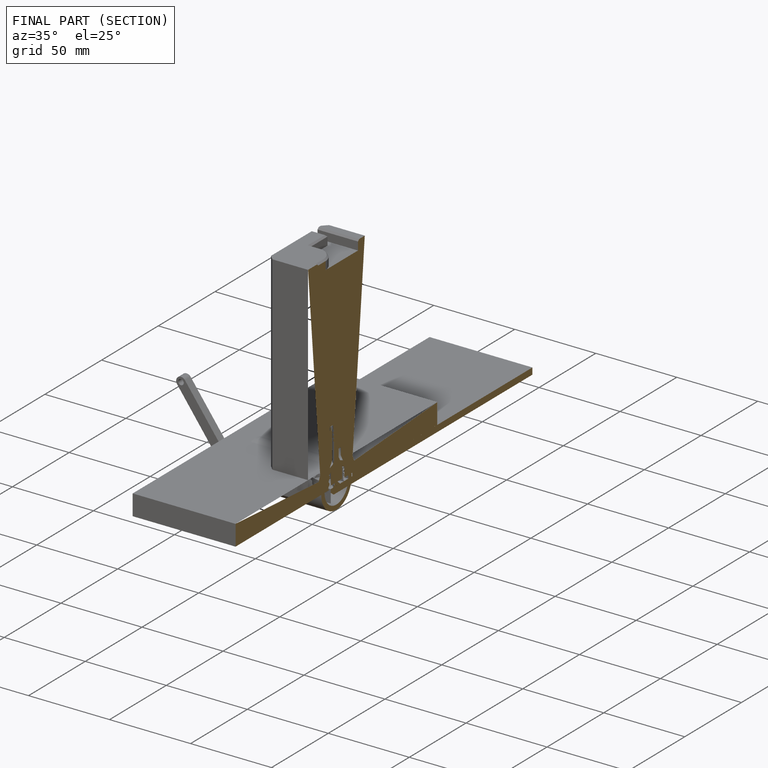
[diagram: finished part — half-section view (interior)]
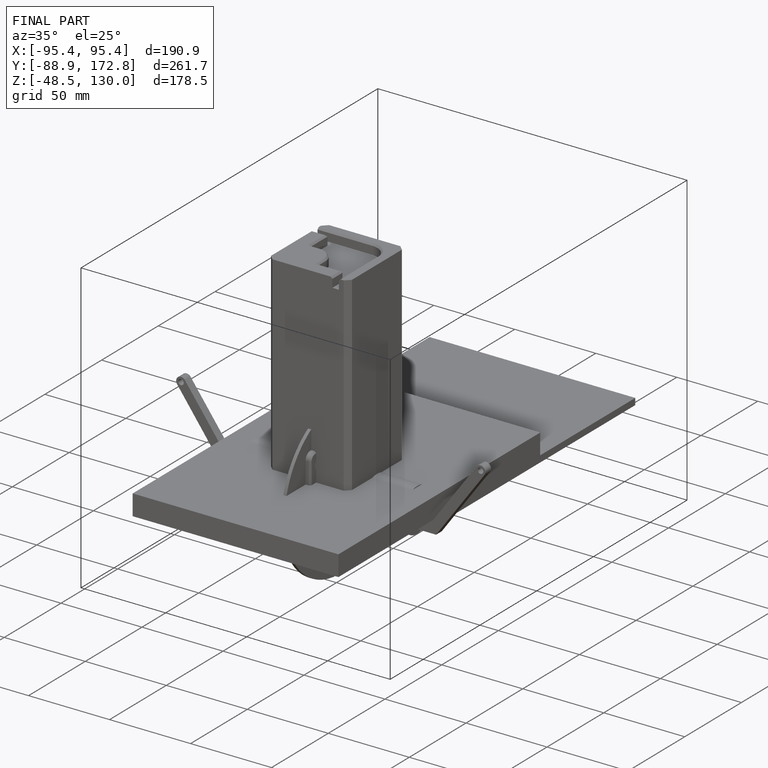
[diagram: finished part — iso view with bounding-box wireframe]
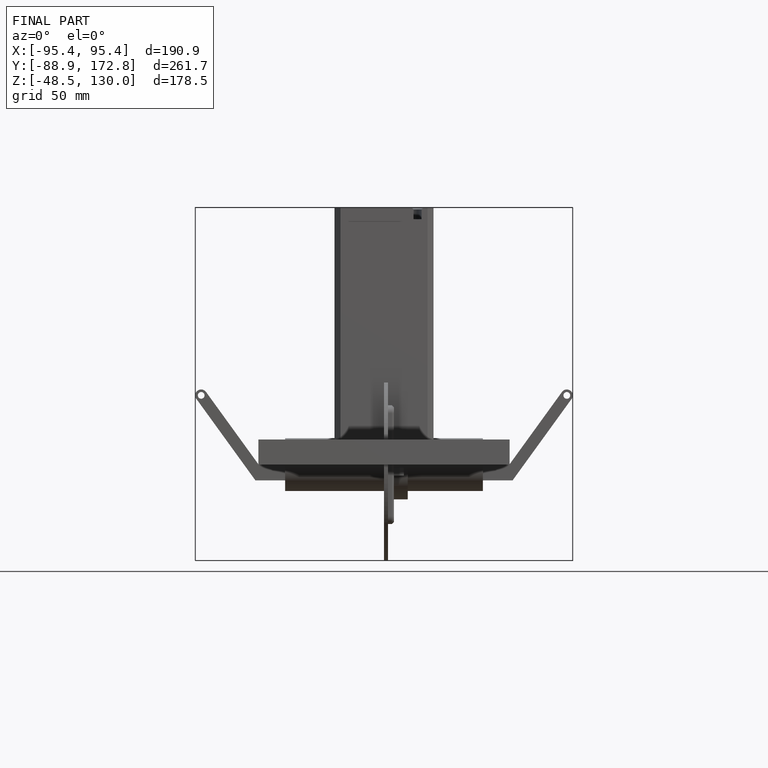
[diagram: finished part — front view with bounding-box wireframe]
